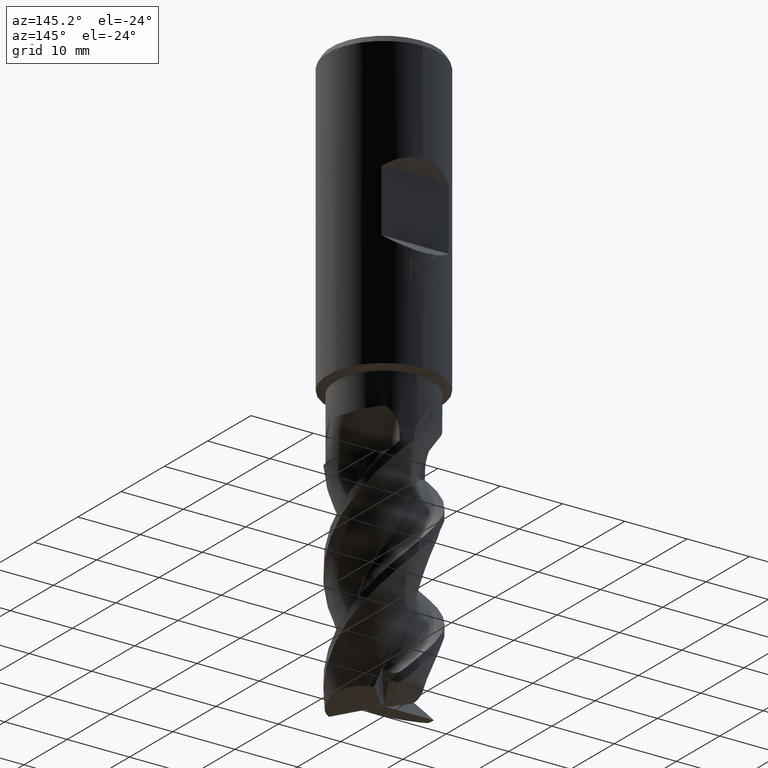
[diagram: clean part render]
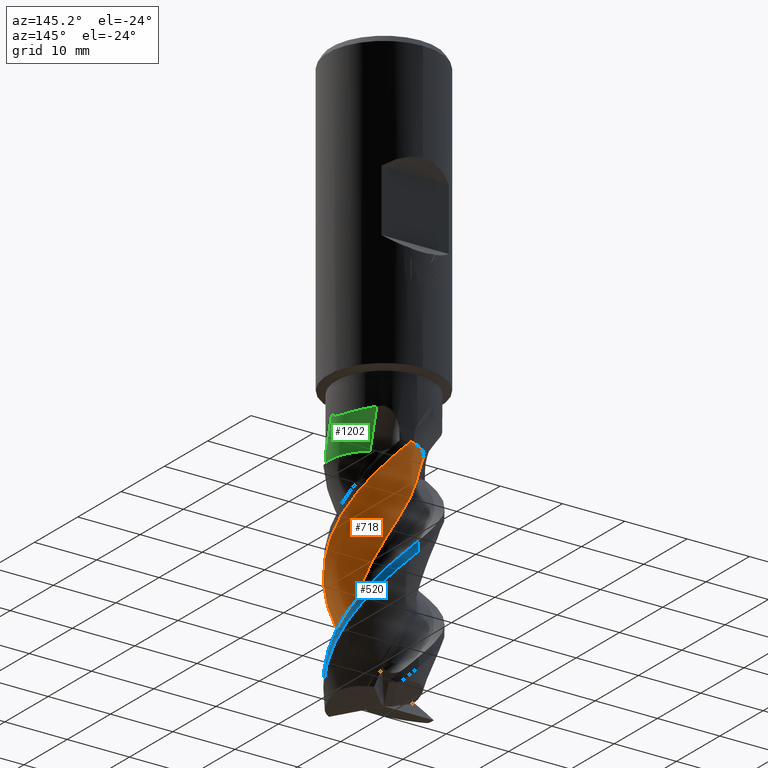
[diagram: same view with three faces highlighted in distinct colors, each labeled with its STEP entity id]
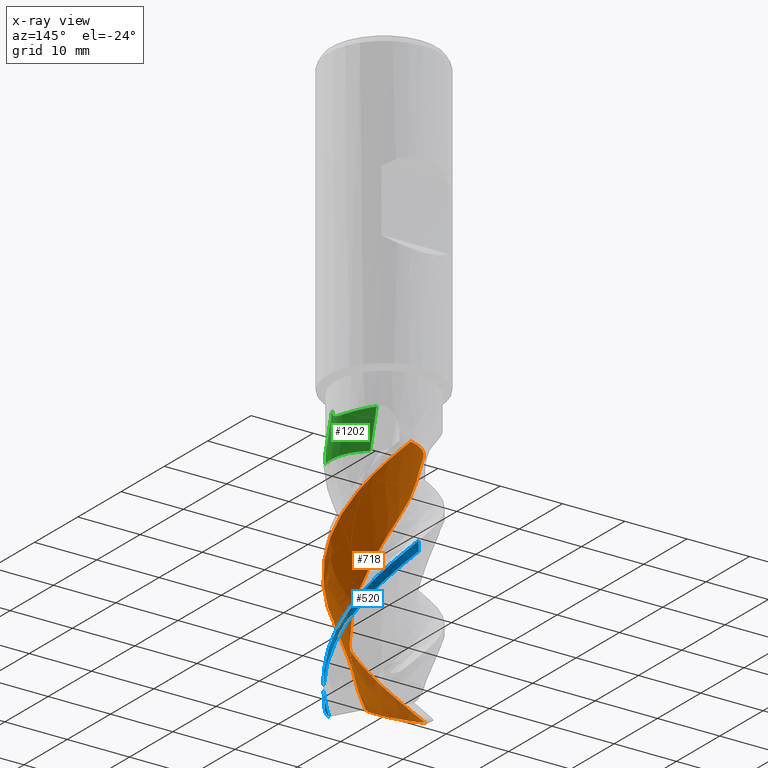
[diagram: x-ray of the same camera — body ghosted, the three highlighted faces saturated]
A machine part, auxiliary view with three faces highlighted in distinct colors.
The next image is the same camera in x-ray (body ghosted, the three faces saturated) — at least one of them is partly hidden behind the body in this view.
Their STEP definitions:

[orange] entity #718 — the highlighted face is a freeform B-spline surface patch.
#518=EDGE_CURVE('',#1126,#1322,#1453,.T.);
#596=EDGE_CURVE('',#648,#1126,#1540,.T.);
#648=VERTEX_POINT('',#1596);
#716=VERTEX_POINT('',#1673);
#718=ADVANCED_FACE('',(#1675),#1676,.T.);
#724=EDGE_CURVE('',#1322,#716,#1682,.T.);
#748=EDGE_CURVE('',#1280,#648,#1708,.T.);
#928=VERTEX_POINT('',#1901);
#1126=VERTEX_POINT('',#2114);
#1280=VERTEX_POINT('',#2280);
#1322=VERTEX_POINT('',#2329);
#1360=EDGE_CURVE('',#716,#928,#2372,.T.);
#1394=EDGE_CURVE('',#928,#1280,#2407,.T.);
#1453=B_SPLINE_CURVE_WITH_KNOTS('',3,(#2482,#2483,#2484,#2485,#2486,#2487,#2488,#2489,#2490,#2491),.UNSPECIFIED.,.F.,.F.,(4,2,2,2,4),(0.0,2.37430906525761,4.58271116722542,6.91978550680983,9.25201601344273),.UNSPECIFIED.);
#1540=B_SPLINE_CURVE_WITH_KNOTS('',3,(#2966,#2967,#2968,#2969,#2970,#2971,#2972,#2973,#2974,#2975,#2976,#2977,#2978,#2979,#2980,#2981,#2982,#2983,#2984,#2985,#2986,#2987,#2988,#2989,#2990,#2991,#2992,#2993,#2994,#2995,#2996,#2997,#2998,#2999,#3000,#3001,#3002,#3003,#3004,#3005,#3006,#3007,#3008,#3009,#3010,#3011,#3012,#3013,#3014,#3015,#3016,#3017,#3018,#3019,#3020,#3021),.UNSPECIFIED.,.F.,.F.,(4,2,2,2,2,2,2,2,2,2,2,2,2,2,2,2,2,2,2,2,2,2,2,2,2,2,2,4),(-28.4668429796781,-27.6712994719796,-26.8872778824875,-25.3350020965438,-24.9797718849759,-23.8201768144361,-22.4186734782329,-22.2692294963821,-21.5970282886077,-20.8523705344005,-19.3715810572476,-19.311292631882,-18.5876918884996,-16.6881741333263,-15.9772524079142,-15.1858151962003,-13.621192413923,-12.7987345154864,-12.104412388002,-10.277907394323,-9.33354088388494,-8.41467224339763,-6.59874730288563,-6.50013797391828,-2.43183300944061,-2.29245456062611,-1.17778017655191,-0.0),.UNSPECIFIED.);
#1596=CARTESIAN_POINT('',(-3.90817972178988,2.27155307286121,-58.0));
#1673=CARTESIAN_POINT('',(3.71241503235173E-014,-7.99996845163201,-81.9580712053547));
#1675=FACE_OUTER_BOUND('',#4681,.T.);
#1676=B_SPLINE_SURFACE_WITH_KNOTS('',3,3,((#4682,#4683,#4684,#4685,#4686,#4687,#4688,#4689,#4690,#4691,#4692,#4693,#4694,#4695,#4696,#4697,#4698,#4699,#4700,#4701,#4702,#4703,#4704,#4705,#4706,#4707,#4708,#4709,#4710,#4711,#4712,#4713,#4714,#4715,#4716,#4717,#4718,#4719,#4720,#4721,#4722,#4723,#4724,#4725,#4726,#4727,#4728,#4729,#4730,#4731,#4732,#4733,#4734,#4735,#4736,#4737,#4738,#4739,#4740,#4741,#4742,#4743,#4744,#4745,#4746,#4747,#4748,#4749,#4750,#4751,#4752,#4753,#4754),(#4755,#4756,#4757,#4758,#4759,#4760,#4761,#4762,#4763,#4764,#4765,#4766,#4767,#4768,#4769,#4770,#4771,#4772,#4773,#4774,#4775,#4776,#4777,#4778,#4779,#4780,#4781,#4782,#4783,#4784,#4785,#4786,#4787,#4788,#4789,#4790,#4791,#4792,#4793,#4794,#4795,#4796,#4797,#4798,#4799,#4800,#4801,#4802,#4803,#4804,#4805,#4806,#4807,#4808,#4809,#4810,#4811,#4812,#4813,#4814,#4815,#4816,#4817,#4818,#4819,#4820,#4821,#4822,#4823,#4824,#4825,#4826,#4827),(#4828,#4829,#4830,#4831,#4832,#4833,#4834,#4835,#4836,#4837,#4838,#4839,#4840,#4841,#4842,#4843,#4844,#4845,#4846,#4847,#4848,#4849,#4850,#4851,#4852,#4853,#4854,#4855,#4856,#4857,#4858,#4859,#4860,#4861,#4862,#4863,#4864,#4865,#4866,#4867,#4868,#4869,#4870,#4871,#4872,#4873,#4874,#4875,#4876,#4877,#4878,#4879,#4880,#4881,#4882,#4883,#4884,#4885,#4886,#4887,#4888,#4889,#4890,#4891,#4892,#4893,#4894,#4895,#4896,#4897,#4898,#4899,#4900),(#4901,#4902,#4903,#4904,#4905,#4906,#4907,#4908,#4909,#4910,#4911,#4912,#4913,#4914,#4915,#4916,#4917,#4918,#4919,#4920,#4921,#4922,#4923,#4924,#4925,#4926,#4927,#4928,#4929,#4930,#4931,#4932,#4933,#4934,#4935,#4936,#4937,#4938,#4939,#4940,#4941,#4942,#4943,#4944,#4945,#4946,#4947,#4948,#4949,#4950,#4951,#4952,#4953,#4954,#4955,#4956,#4957,#4958,#4959,#4960,#4961,#4962,#4963,#4964,#4965,#4966,#4967,#4968,#4969,#4970,#4971,#4972,#4973),(#4974,#4975,#4976,#4977,#4978,#4979,#4980,#4981,#4982,#4983,#4984,#4985,#4986,#4987,#4988,#4989,#4990,#4991,#4992,#4993,#4994,#4995,#4996,#4997,#4998,#4999,#5000,#5001,#5002,#5003,#5004,#5005,#5006,#5007,#5008,#5009,#5010,#5011,#5012,#5013,#5014,#5015,#5016,#5017,#5018,#5019,#5020,#5021,#5022,#5023,#5024,#5025,#5026,#5027,#5028,#5029,#5030,#5031,#5032,#5033,#5034,#5035,#5036,#5037,#5038,#5039,#5040,#5041,#5042,#5043,#5044,#5045,#5046),(#5047,#5048,#5049,#5050,#5051,#5052,#5053,#5054,#5055,#5056,#5057,#5058,#5059,#5060,#5061,#5062,#5063,#5064,#5065,#5066,#5067,#5068,#5069,#5070,#5071,#5072,#5073,#5074,#5075,#5076,#5077,#5078,#5079,#5080,#5081,#5082,#5083,#5084,#5085,#5086,#5087,#5088,#5089,#5090,#5091,#5092,#5093,#5094,#5095,#5096,#5097,#5098,#5099,#5100,#5101,#5102,#5103,#5104,#5105,#5106,#5107,#5108,#5109,#5110,#5111,#5112,#5113,#5114,#5115,#5116,#5117,#5118,#5119),(#5120,#5121,#5122,#5123,#5124,#5125,#5126,#5127,#5128,#5129,#5130,#5131,#5132,#5133,#5134,#5135,#5136,#5137,#5138,#5139,#5140,#5141,#5142,#5143,#5144,#5145,#5146,#5147,#5148,#5149,#5150,#5151,#5152,#5153,#5154,#5155,#5156,#5157,#5158,#5159,#5160,#5161,#5162,#5163,#5164,#5165,#5166,#5167,#5168,#5169,#5170,#5171,#5172,#5173,#5174,#5175,#5176,#5177,#5178,#5179,#5180,#5181,#5182,#5183,#5184,#5185,#5186,#5187,#5188,#5189,#5190,#5191,#5192)),.UNSPECIFIED.,.F.,.F.,.F.,(4,1,1,1,4),(4,1,1,2,1,2,1,1,2,1,1,2,1,1,2,1,1,1,2,1,1,2,1,1,2,1,1,1,2,1,1,2,1,1,2,1,1,1,2,1,1,2,1,1,2,1,1,1,2,1,1,2,1,1,4),(-1.37901021718593,-1.03425766288945,-0.689505108592964,-0.344752554296482,0.0),(0.0,1.05208028823285,1.57812043234927,2.10416057646569,3.15624086469854,4.20832115293138,6.31248172939707,7.36456201762992,8.41664230586276,9.46872259409561,11.0468430264449,12.6249634587941,14.2030838911434,15.7812043234927,16.8332846117255,17.8853648999584,18.9374451881912,19.9895254764241,21.0416057646569,22.0936860528897,23.671806485239,25.2499269175883,26.8280473499375,28.4061677822868,29.4582480705197,30.5103283587525,31.5624086469854,32.6144889352182,33.666569223451,34.7186495116839,36.2967699440332,37.8748903763824,39.4530108087317,41.031131241081,42.0832115293138,43.1352918175466,44.1873721057795,45.2394523940123,46.2915326822452,47.343612970478,48.9217334028273,50.4998538351766,52.0779742675258,53.6560946998751,54.7081749881079,55.7602552763408,56.8123355645736,57.8644158528065,58.9164961410393,59.9685764292722,61.5466968616214,63.1248172939707,64.70293772632,66.2810581586692,67.3331384469021),.UNSPECIFIED.);
#1682=B_SPLINE_CURVE_WITH_KNOTS('',3,(#5217,#5218,#5219,#5220,#5221,#5222,#5223,#5224,#5225,#5226,#5227,#5228,#5229,#5230,#5231,#5232,#5233,#5234,#5235,#5236,#5237,#5238,#5239,#5240,#5241,#5242,#5243,#5244,#5245,#5246,#5247,#5248,#5249,#5250,#5251,#5252,#5253,#5254,#5255,#5256,#5257,#5258,#5259,#5260,#5261,#5262,#5263,#5264,#5265,#5266,#5267,#5268,#5269,#5270,#5271,#5272),.UNSPECIFIED.,.F.,.F.,(4,2,2,2,2,2,2,2,2,2,2,2,2,2,2,2,2,2,2,2,2,2,2,2,2,2,2,4),(0.0,0.732669055719946,2.28817554699491,5.11171561271791,6.67522052705996,8.3601578091708,10.1335658830977,10.9957548452905,11.848013571475,13.6137395961151,14.4832272060883,16.081257737639,16.9448364702455,17.3450872287202,18.9218150157688,19.7516521338327,20.560008984626,22.1023979328835,22.8774610967245,23.6656678778752,25.2035266868077,26.117184424314,26.848045797212,27.6142657448053,28.7602006574762,29.3399801698441,29.6260785283109,29.903547263316),.UNSPECIFIED.);
#1708=B_SPLINE_CURVE_WITH_KNOTS('',3,(#5330,#5331,#5332,#5333,#5334,#5335,#5336,#5337,#5338,#5339),.UNSPECIFIED.,.F.,.F.,(4,2,2,2,4),(0.0,2.58388033049867,5.16756904786084,7.07826249463139,8.98889284253177),.UNSPECIFIED.);
#1901=CARTESIAN_POINT('',(1.16221636464933,7.91502704554703,-58.0));
#2114=CARTESIAN_POINT('',(-0.228141212503203,-4.51477288349573,-91.8869266797114));
#2280=CARTESIAN_POINT('',(-3.76787365884858,3.04118280575959,-58.0));
#2329=CARTESIAN_POINT('',(-7.81773805166928,-1.69792894787821,-92.8021747556161));
#2372=B_SPLINE_CURVE_WITH_KNOTS('',3,(#10279,#10280,#10281,#10282,#10283,#10284,#10285,#10286,#10287,#10288,#10289,#10290,#10291,#10292,#10293,#10294,#10295,#10296,#10297,#10298,#10299,#10300,#10301,#10302,#10303,#10304,#10305,#10306,#10307,#10308,#10309,#10310,#10311,#10312,#10313,#10314,#10315,#10316,#10317,#10318,#10319,#10320,#10321,#10322,#10323,#10324,#10325,#10326,#10327,#10328,#10329,#10330,#10331,#10332,#10333,#10334),.UNSPECIFIED.,.F.,.F.,(4,2,2,2,2,2,2,2,2,2,2,2,2,2,2,2,2,2,2,2,2,2,2,2,2,2,2,4),(0.0,0.732669055719946,2.28817554699491,5.11171561271791,6.67522052705996,8.3601578091708,10.1335658830977,10.9957548452905,11.848013571475,13.6137395961151,14.4832272060883,16.081257737639,16.9448364702455,17.3450872287202,18.9218150157688,19.7516521338327,20.560008984626,22.1023979328835,22.8774610967245,23.6656678778752,25.2035266868077,26.117184424314,26.848045797212,27.6142657448053,28.7602006574762,29.3399801698441,29.6260785283109,29.903547263316),.UNSPECIFIED.);
#2407=B_SPLINE_CURVE_WITH_KNOTS('',3,(#10407,#10408,#10409,#10410,#10411,#10412,#10413,#10414,#10415,#10416),.UNSPECIFIED.,.F.,.F.,(4,2,2,2,4),(0.0,2.58388033049867,5.16756904786084,7.07826249463139,8.98889284253177),.UNSPECIFIED.);
#2482=CARTESIAN_POINT('',(-0.164807803172486,-4.48892189368576,-91.8953261754761));
#2483=CARTESIAN_POINT('',(-0.890431781690487,-4.78943370008212,-91.7976839706274));
#2484=CARTESIAN_POINT('',(-1.66359583249642,-4.96033401382268,-91.7421550926007));
#2485=CARTESIAN_POINT('',(-3.18828779542198,-4.9872036036146,-91.7334246336476));
#2486=CARTESIAN_POINT('',(-3.91244869821299,-4.86360169611754,-91.7735853280508));
#2487=CARTESIAN_POINT('',(-5.3184749052444,-4.33498457762825,-91.9453434416138));
#2488=CARTESIAN_POINT('',(-5.9695205516916,-3.92385766305435,-92.0789266734788));
#2489=CARTESIAN_POINT('',(-7.07910133383891,-2.88814178759526,-92.4154511611166));
#2490=CARTESIAN_POINT('',(-7.59356820476778,-2.21217783534017,-92.6350851633138));
#2491=CARTESIAN_POINT('',(-7.97552161580536,-1.37524889636174,-92.9070198599352));
#2966=CARTESIAN_POINT('',(-3.90819313045627,2.27152999087688,-57.9999529717016));
#2967=CARTESIAN_POINT('',(-3.79315751578874,2.46955623806892,-58.4034204624959));
#2968=CARTESIAN_POINT('',(-3.66914644937536,2.65136486740278,-58.7726139208445));
#2969=CARTESIAN_POINT('',(-3.38960954869651,3.00130198719128,-59.5492913711479));
#2970=CARTESIAN_POINT('',(-3.24011480194033,3.16155030716519,-59.9386376518804));
#2971=CARTESIAN_POINT('',(-2.76875664429876,3.59956570797134,-61.0964199568316));
#2972=CARTESIAN_POINT('',(-2.40973861306117,3.84946901151917,-61.8898483513522));
#2973=CARTESIAN_POINT('',(-1.92293438469999,4.09274863810651,-62.828941412362));
#2974=CARTESIAN_POINT('',(-1.83461494011715,4.13345532035391,-62.9930068294295));
#2975=CARTESIAN_POINT('',(-1.43634714611996,4.30065934354081,-63.735730467698));
#2976=CARTESIAN_POINT('',(-1.12476116302424,4.39115352932487,-64.3151099090927));
#2977=CARTESIAN_POINT('',(-0.435095442754385,4.51602155605177,-65.5815366961609));
#2978=CARTESIAN_POINT('',(-0.0415839035732913,4.53743818498871,-66.2909490589945));
#2979=CARTESIAN_POINT('',(0.400856260188374,4.50331011112592,-67.0512709854903));
#2980=CARTESIAN_POINT('',(0.440516126251905,4.49970529706755,-67.1188321227293));
#2981=CARTESIAN_POINT('',(0.662035077046195,4.4766239741428,-67.4985761608433));
#2982=CARTESIAN_POINT('',(0.838933632580422,4.44684005354959,-67.8114834714408));
#2983=CARTESIAN_POINT('',(1.20202777717491,4.36349103205715,-68.4725369292798));
#2984=CARTESIAN_POINT('',(1.38826308072582,4.30743961035394,-68.8228076222131));
#2985=CARTESIAN_POINT('',(1.92863311419843,4.10648811464159,-69.8648708964093));
#2986=CARTESIAN_POINT('',(2.27907174269973,3.92393492026724,-70.5741049567514));
#2987=CARTESIAN_POINT('',(2.62223049115493,3.68288283435066,-71.2888191940079));
#2988=CARTESIAN_POINT('',(2.63475892321705,3.67398505074372,-71.3149070901164));
#2989=CARTESIAN_POINT('',(2.80212530001912,3.55379441704999,-71.6655793825919));
#2990=CARTESIAN_POINT('',(2.94660151553935,3.43489541336661,-71.9917371094833));
#2991=CARTESIAN_POINT('',(3.43528612428686,2.97976290262574,-73.176864344014));
#2992=CARTESIAN_POINT('',(3.73393939437256,2.59368394440039,-74.0688072510032));
#2993=CARTESIAN_POINT('',(4.05585019489967,2.00477710404023,-75.242934227987));
#2994=CARTESIAN_POINT('',(4.13079996180739,1.84669689096218,-75.5369438409312));
#2995=CARTESIAN_POINT('',(4.27291551006113,1.49326964616147,-76.1956679105077));
#2996=CARTESIAN_POINT('',(4.3338566507599,1.30504005486735,-76.545615506391));
#2997=CARTESIAN_POINT('',(4.47664845846067,0.742170383280615,-77.5870277103296));
#2998=CARTESIAN_POINT('',(4.52326473149477,0.355096193016438,-78.2961989947082));
#2999=CARTESIAN_POINT('',(4.51866231419897,-0.242359017331434,-79.3468795612129));
#3000=CARTESIAN_POINT('',(4.50430661132099,-0.438414056572868,-79.6776847662718));
#3001=CARTESIAN_POINT('',(4.45286700354202,-0.804642776312843,-80.3168300821526));
#3002=CARTESIAN_POINT('',(4.42001269521806,-0.968526990437365,-80.6113394530964));
#3003=CARTESIAN_POINT('',(4.27010916049468,-1.54880348324693,-81.6816308884445));
#3004=CARTESIAN_POINT('',(4.09997917427474,-1.95342574879886,-82.4818399839966));
#3005=CARTESIAN_POINT('',(3.75573533383923,-2.526208032934,-83.6531658836038));
#3006=CARTESIAN_POINT('',(3.62830018052659,-2.70767997351626,-84.0237705366331));
#3007=CARTESIAN_POINT('',(3.33928903186456,-3.05729958658092,-84.8152145372925));
#3008=CARTESIAN_POINT('',(3.18586499774526,-3.21623837864117,-85.2094955063132));
#3009=CARTESIAN_POINT('',(2.70300932385998,-3.64932556889895,-86.3789814496784));
#3010=CARTESIAN_POINT('',(2.33484724558373,-3.89612886889362,-87.1798953710025));
#3011=CARTESIAN_POINT('',(1.90555294937128,-4.09981344714585,-87.9921679421971));
#3012=CARTESIAN_POINT('',(1.88532531637319,-4.10919820835611,-88.0301402174905));
#3013=CARTESIAN_POINT('',(1.12438935191104,-4.45702540148487,-89.4514990063801));
#3014=CARTESIAN_POINT('',(0.348992854903363,-4.56545533555701,-90.8985984433762));
#3015=CARTESIAN_POINT('',(-0.411184295740903,-4.50224355900288,-92.2025242520616));
#3016=CARTESIAN_POINT('',(-0.434488313111661,-4.50011440854567,-92.2422956149002));
#3017=CARTESIAN_POINT('',(-0.645331488895867,-4.47924344162843,-92.6032049835975));
#3018=CARTESIAN_POINT('',(-0.828248946933118,-4.44902603746472,-92.9263291048137));
#3019=CARTESIAN_POINT('',(-1.19443042738568,-4.36541808273099,-93.5924027585147));
#3020=CARTESIAN_POINT('',(-1.3781413441711,-4.31056357998282,-93.9372408283281));
#3021=CARTESIAN_POINT('',(-1.55663351426407,-4.2448012723105,-94.2806726784696));
#4681=EDGE_LOOP('',(#10732,#10733,#10734,#10735,#10736,#10737));
#4682=CARTESIAN_POINT('',(2.3060802388656,7.99402238740563,-109.0));
#4683=CARTESIAN_POINT('',(2.25731157464283,8.00766404818819,-108.651042759209));
#4684=CARTESIAN_POINT('',(2.04219996221011,8.07216497479465,-108.127662262609));
#4685=CARTESIAN_POINT('',(1.44808755403287,8.19661323175689,-107.429821293825));
#4686=CARTESIAN_POINT('',(1.04516490962436,8.25432362032309,-107.080863110386));
#4687=CARTESIAN_POINT('',(0.36354258203449,8.32097126109252,-106.557362705397));
#4688=CARTESIAN_POINT('',(-0.484672211968626,8.33047078920658,-105.859341245573));
#4689=CARTESIAN_POINT('',(-1.21671025615042,8.23542804862728,-105.161390836272));
#4690=CARTESIAN_POINT('',(-2.24742218480573,8.03926352768804,-104.114575390176));
#4691=CARTESIAN_POINT('',(-3.24083046838269,7.71743649834359,-103.067751802653));
#4692=CARTESIAN_POINT('',(-4.49068734031985,7.02924902155404,-101.671967103328));
#4693=CARTESIAN_POINT('',(-5.0857762756534,6.59215499663479,-100.974050916022));
#4694=CARTESIAN_POINT('',(-5.66053922940679,6.10568196095665,-100.276110283525));
#4695=CARTESIAN_POINT('',(-6.32220406974835,5.46241027149522,-99.4036770183619));
#4696=CARTESIAN_POINT('',(-7.1745333002134,4.30929017957769,-98.0078106808517));
#4697=CARTESIAN_POINT('',(-7.64344257135939,3.32692530045031,-96.9609522632323));
#4698=CARTESIAN_POINT('',(-8.01926311890461,2.27661009491647,-95.9140887479022));
#4699=CARTESIAN_POINT('',(-8.28038936887536,1.21765907140854,-94.8672064705926));
#4700=CARTESIAN_POINT('',(-8.35202336109279,-0.213141127134513,-93.4713823372517));
#4701=CARTESIAN_POINT('',(-8.24970983970643,-1.12265824229889,-92.5989945314596));
#4702=CARTESIAN_POINT('',(-8.11659659999758,-1.85462903317301,-91.9010754052081));
#4703=CARTESIAN_POINT('',(-7.93716784436209,-2.56406453979383,-91.2031489855393));
#4704=CARTESIAN_POINT('',(-7.54073283439913,-3.5642105079066,-90.1562651489506));
#4705=CARTESIAN_POINT('',(-7.01941180784815,-4.50556044125067,-89.1093961502756));
#4706=CARTESIAN_POINT('',(-6.58488074477173,-5.09486385740506,-88.4114870194221));
#4707=CARTESIAN_POINT('',(-6.10345508902533,-5.66274620444091,-87.7135702660375));
#4708=CARTESIAN_POINT('',(-5.46543484531181,-6.31915665120656,-86.8411643071416));
#4709=CARTESIAN_POINT('',(-4.31489860360285,-7.17129514809577,-85.4453242043968));
#4710=CARTESIAN_POINT('',(-3.33105182460524,-7.64167609437863,-84.3984644268323));
#4711=CARTESIAN_POINT('',(-2.28007264170665,-8.01831236858324,-83.3515887396078));
#4712=CARTESIAN_POINT('',(-1.22143681605695,-8.27976950827045,-82.3046971535594));
#4713=CARTESIAN_POINT('',(0.20820349551885,-8.35212381734302,-80.908869023202));
#4714=CARTESIAN_POINT('',(1.11770303480591,-8.25039133987058,-80.0364825824723));
#4715=CARTESIAN_POINT('',(1.85007696086369,-8.11763816686597,-79.3385655120775));
#4716=CARTESIAN_POINT('',(2.55997969469184,-7.93850291758653,-78.6406407088683));
#4717=CARTESIAN_POINT('',(3.56078967476739,-7.54235892317725,-77.593758113796));
#4718=CARTESIAN_POINT('',(4.50261332008284,-7.02130398901044,-76.5468893903909));
#4719=CARTESIAN_POINT('',(5.09205862112181,-6.58704409449121,-75.8489799906006));
#4720=CARTESIAN_POINT('',(5.66000293667565,-6.10599599713467,-75.1510628625699));
#4721=CARTESIAN_POINT('',(6.31654135858338,-5.46843726595221,-74.2786565784287));
#4722=CARTESIAN_POINT('',(7.16911475997245,-4.3185088324805,-72.8828163788516));
#4723=CARTESIAN_POINT('',(7.64000258734788,-3.33489750722289,-71.8359566866951));
#4724=CARTESIAN_POINT('',(8.01719384641748,-2.28401155066727,-70.7890810398009));
#4725=CARTESIAN_POINT('',(8.27918412893221,-1.22542609725916,-69.74218944878));
#4726=CARTESIAN_POINT('',(8.35222204393303,0.204219022408521,-68.3463612764392));
#4727=CARTESIAN_POINT('',(8.25092406106006,1.11376142927899,-67.4739748307889));
#4728=CARTESIAN_POINT('',(8.11852367151964,1.84618713698325,-66.7760577707352));
#4729=CARTESIAN_POINT('',(7.93973185194925,2.55616452281762,-66.0781329756518));
#4730=CARTESIAN_POINT('',(7.54407638863783,3.557148772102,-65.0312503915912));
#4731=CARTESIAN_POINT('',(7.02348625617033,4.49920746445898,-63.9843816852115));
#4732=CARTESIAN_POINT('',(6.58952133530043,5.08885201757606,-63.2864723060807));
#4733=CARTESIAN_POINT('',(6.10875984182039,5.65701894045009,-62.5885552066561));
#4734=CARTESIAN_POINT('',(5.47152531606279,6.31386659616005,-61.7161489610627));
#4735=CARTESIAN_POINT('',(4.32197563805251,7.1670300841662,-60.3203087495922));
#4736=CARTESIAN_POINT('',(3.33853255455701,7.6384166587273,-59.2734488795264));
#4737=CARTESIAN_POINT('',(2.2877677179617,8.01612573698375,-58.2265729272588));
#4738=CARTESIAN_POINT('',(1.22933125485873,8.27859897017585,-57.1796811372211));
#4739=CARTESIAN_POINT('',(-0.200143517105302,8.35231610856468,-55.7838534340551));
#4740=CARTESIAN_POINT('',(-1.10969064650599,8.25147262315969,-54.911467828959));
#4741=CARTESIAN_POINT('',(-1.84217957314589,8.11943343212398,-54.2135516377554));
#4742=CARTESIAN_POINT('',(-2.55231290348238,7.94097655195973,-53.5156274063735));
#4743=CARTESIAN_POINT('',(-3.55357998658323,7.5457613277412,-52.4687443967097));
#4744=CARTESIAN_POINT('',(-4.4957836637074,7.02566816130538,-51.4218737590403));
#4745=CARTESIAN_POINT('',(-5.08535520481706,6.5922068925181,-50.7239620115071));
#4746=CARTESIAN_POINT('',(-5.65335996398015,6.11212249103564,-50.0260420096526));
#4747=CARTESIAN_POINT('',(-6.31017625949219,5.47570726962633,-49.1536336857679));
#4748=CARTESIAN_POINT('',(-7.16467212829123,4.32614489348423,-47.7577970722911));
#4749=CARTESIAN_POINT('',(-7.63808071207035,3.33969289988787,-46.7109460235936));
#4750=CARTESIAN_POINT('',(-8.01752295448308,2.28372667490972,-45.6640812243685));
#4751=CARTESIAN_POINT('',(-8.27935367132569,1.22323863241457,-44.6171927299836));
#4752=CARTESIAN_POINT('',(-8.35160134871196,-0.19371951930238,-43.2213644948005));
#4753=CARTESIAN_POINT('',(-8.25419972435698,-1.08699171686982,-42.3489859073541));
#4754=CARTESIAN_POINT('',(-8.190793021947,-1.44567709106436,-42.0000330088057));
#4755=CARTESIAN_POINT('',(1.54710732607867,7.95245334154674,-109.0));
#4756=CARTESIAN_POINT('',(1.49872884649446,7.95897112642963,-108.651009345214));
#4757=CARTESIAN_POINT('',(1.28478943762125,8.00040449547096,-108.127816673453));
#4758=CARTESIAN_POINT('',(0.698250194627938,8.06895575953263,-107.430261284736));
#4759=CARTESIAN_POINT('',(0.302621590616045,8.09056524000994,-107.081319001911));
#4760=CARTESIAN_POINT('',(-0.364156303305005,8.09758905572271,-106.557620601551));
#4761=CARTESIAN_POINT('',(-1.18758767308869,8.03466231851409,-105.859246641106));
#4762=CARTESIAN_POINT('',(-1.8891139600918,7.87952028486688,-105.161172181885));
#4763=CARTESIAN_POINT('',(-2.87126046603825,7.6002772699011,-104.114551281483));
#4764=CARTESIAN_POINT('',(-3.80632594545183,7.20238475490013,-103.067903870538));
#4765=CARTESIAN_POINT('',(-4.95856064694663,6.4274646661205,-101.672292996074));
#4766=CARTESIAN_POINT('',(-5.49790046475841,5.95254764715217,-100.974382684883));
#4767=CARTESIAN_POINT('',(-6.01339842375484,5.43156500439613,-100.276363677148));
#4768=CARTESIAN_POINT('',(-6.59955150926105,4.75101695242617,-99.4038058838089));
#4769=CARTESIAN_POINT('',(-7.32632891408926,3.55966206931907,-98.0078291897292));
#4770=CARTESIAN_POINT('',(-7.69625000668369,2.56694702894841,-96.9610282547727));
#4771=CARTESIAN_POINT('',(-7.97034088533733,1.51637248050528,-95.9142053516751));
#4772=CARTESIAN_POINT('',(-8.13225888283925,0.467284891179808,-94.8673001563886));
#4773=CARTESIAN_POINT('',(-8.07827926318302,-0.925894449851735,-93.4715106769438));
#4774=CARTESIAN_POINT('',(-7.90081381117937,-1.79881671257545,-92.5991523634946));
#4775=CARTESIAN_POINT('',(-7.70886078240541,-2.4970226573232,-91.9012264220051));
#4776=CARTESIAN_POINT('',(-7.47384645115819,-3.16934730871445,-91.2032682845764));
#4777=CARTESIAN_POINT('',(-7.00329628249535,-4.10470687880196,-90.1563564871993));
#4778=CARTESIAN_POINT('',(-6.41675668168207,-4.97229711314417,-89.1095100714887));
#4779=CARTESIAN_POINT('',(-5.94478215908418,-5.50619583827767,-88.4116280761649));
#4780=CARTESIAN_POINT('',(-5.42924275682237,-6.01538948662503,-87.713712439563));
#4781=CARTESIAN_POINT('',(-4.75420801032699,-6.59683925718393,-86.8412737455513));
#4782=CARTESIAN_POINT('',(-3.56537421203943,-7.32364096244583,-85.4454134736228));
#4783=CARTESIAN_POINT('',(-2.5710993362924,-7.69488626589944,-84.3986078542817));
#4784=CARTESIAN_POINT('',(-1.51981131938484,-7.96972382129157,-83.3517320381977));
#4785=CARTESIAN_POINT('',(-0.470999923210667,-8.13198989774582,-82.3047860439102));
#4786=CARTESIAN_POINT('',(0.921114121453092,-8.07879738330473,-80.9089785899512));
#4787=CARTESIAN_POINT('',(1.79406816961878,-7.90189470205842,-80.0366260246887));
#4788=CARTESIAN_POINT('',(2.49269668608521,-7.71025761338114,-79.3387090402003));
#4789=CARTESIAN_POINT('',(3.16550089617856,-7.4754897693249,-78.640757932057));
#4790=CARTESIAN_POINT('',(4.10153193770363,-7.00516765457207,-77.5938516006379));
#4791=CARTESIAN_POINT('',(4.96960633998554,-6.41884692504976,-76.5470065001461));
#4792=CARTESIAN_POINT('',(5.50366588763266,-5.94712292145515,-75.8491233660224));
#4793=CARTESIAN_POINT('',(6.01295085165691,-5.43194351595718,-75.1512061234498));
#4794=CARTESIAN_POINT('',(6.59456288534171,-4.75734435986124,-74.278766015128));
#4795=CARTESIAN_POINT('',(7.32183679262112,-3.56906172117826,-72.8829053276437));
#4796=CARTESIAN_POINT('',(7.69359374726465,-2.5749715061325,-71.8361000335228));
#4797=CARTESIAN_POINT('',(7.96897818723535,-1.5237262199105,-70.7892243866286));
#4798=CARTESIAN_POINT('',(8.13176604729078,-0.474917646209188,-69.7422783377141));
#4799=CARTESIAN_POINT('',(8.07923610266695,0.917260130591909,-68.3464707233934));
#4800=CARTESIAN_POINT('',(7.90275090753793,1.79029311238108,-67.4741181232858));
#4801=CARTESIAN_POINT('',(7.71145128769669,2.4890020981571,-66.7762012350448));
#4802=CARTESIAN_POINT('',(7.47700988198398,3.161908185467,-66.0782501384846));
#4803=CARTESIAN_POINT('',(7.00714621391588,4.09815020210479,-65.0313439134564));
#4804=CARTESIAN_POINT('',(6.42125570135527,4.96649243229047,-63.9844988992361));
#4805=CARTESIAN_POINT('',(5.9498004513781,5.50077043609261,-63.2866158064415));
#4806=CARTESIAN_POINT('',(5.43487971028945,6.01029576598796,-62.588698649746));
#4807=CARTESIAN_POINT('',(4.76056825535356,6.59223547017556,-61.7162586168332));
#4808=CARTESIAN_POINT('',(3.57260202023284,7.32011446572451,-60.3203977682774));
#4809=CARTESIAN_POINT('',(2.57863200713313,7.69236990491198,-59.2735917781776));
#4810=CARTESIAN_POINT('',(1.52745964614289,7.96826711251426,-58.2267150527528));
#4811=CARTESIAN_POINT('',(0.478753893159748,8.1315356152652,-57.1797685584748));
#4812=CARTESIAN_POINT('',(-0.913317024443536,8.07967762782488,-55.7839632296022));
#4813=CARTESIAN_POINT('',(-1.78639360925654,7.90363251991116,-54.9116138977884));
#4814=CARTESIAN_POINT('',(-2.48519508528905,7.71267792718397,-54.2137001692339));
#4815=CARTESIAN_POINT('',(-3.15828170388636,7.47854869189168,-53.5157506673951));
#4816=CARTESIAN_POINT('',(-4.09483682659948,7.00908849970972,-52.4688412959192));
#4817=CARTESIAN_POINT('',(-4.96336188027068,6.42366656026752,-51.4219875950558));
#4818=CARTESIAN_POINT('',(-5.49760966713382,5.95270371185624,-50.7240953961962));
#4819=CARTESIAN_POINT('',(-6.00703124144449,5.43845044893332,-50.0261677200401));
#4820=CARTESIAN_POINT('',(-6.58900506094903,4.76493291004509,-49.1537227349527));
#4821=CARTESIAN_POINT('',(-7.3181779506384,3.57684198146064,-47.7578835499554));
#4822=CARTESIAN_POINT('',(-7.69216448515316,2.57978644436432,-46.7111118155113));
#4823=CARTESIAN_POINT('',(-7.96934225015576,1.52342377021161,-45.6642711559739));
#4824=CARTESIAN_POINT('',(-8.13183196866695,0.472779170082342,-44.6173174427619));
#4825=CARTESIAN_POINT('',(-8.07953062350894,-0.90701184825884,-43.2214590299273));
#4826=CARTESIAN_POINT('',(-7.90809965218288,-1.76455320152,-42.3490982567605));
#4827=CARTESIAN_POINT('',(-7.81574944229018,-2.10682016830968,-42.0001456445666));
#4828=CARTESIAN_POINT('',(0.0438166097925872,7.6051648581762,-109.0));
#4829=CARTESIAN_POINT('',(-0.0013021296480793,7.59757245200443,-108.650946983062));
#4830=CARTESIAN_POINT('',(-0.204868751481513,7.59328437783438,-108.128104857676));
#4831=CARTESIAN_POINT('',(-0.756808604398779,7.55269121356767,-107.43108246028));
#4832=CARTESIAN_POINT('',(-1.1252859986837,7.5046464724072,-107.08216985051));
#4833=CARTESIAN_POINT('',(-1.74162657261913,7.39760395881666,-106.55810192938));
#4834=CARTESIAN_POINT('',(-2.49028922168072,7.19846843779916,-105.859070077109));
#4835=CARTESIAN_POINT('',(-3.10988196563913,6.93376224063718,-105.160764091571));
#4836=CARTESIAN_POINT('',(-3.96599406933729,6.50528588507953,-104.114506297885));
#4837=CARTESIAN_POINT('',(-4.75791375556304,5.97558738219258,-103.068187682329));
#4838=CARTESIAN_POINT('',(-5.68474084347562,5.06120082040594,-101.672901218728));
#4839=CARTESIAN_POINT('',(-6.09943186729385,4.53005062722945,-100.975001882469));
#4840=CARTESIAN_POINT('',(-6.48440335950223,3.96068446793335,-100.276836594688));
#4841=CARTESIAN_POINT('',(-6.90657751891147,3.23187477611445,-99.4040463990473));
#4842=CARTESIAN_POINT('',(-7.36897456592359,2.00775805162727,-98.0078637178728));
#4843=CARTESIAN_POINT('',(-7.53734128923574,1.02879808686786,-96.9611701000561));
#4844=CARTESIAN_POINT('',(-7.60790768361821,0.0131119553242192,-95.9144229557053));
#4845=CARTESIAN_POINT('',(-7.57486653527999,-0.981721763169007,-94.8674750140067));
#4846=CARTESIAN_POINT('',(-7.28278462002316,-2.25594881363101,-93.4717502370891));
#4847=CARTESIAN_POINT('',(-6.96777064582973,-3.02953374752367,-92.5994468905561));
#4848=CARTESIAN_POINT('',(-6.66990441361013,-3.63973912228865,-91.9015083134394));
#4849=CARTESIAN_POINT('',(-6.33664905695906,-4.21850463038697,-91.2034909113063));
#4850=CARTESIAN_POINT('',(-5.74043574825237,-4.99851159025596,-90.1565269151499));
#4851=CARTESIAN_POINT('',(-5.04914714648407,-5.69590126103298,-89.1097227008463));
#4852=CARTESIAN_POINT('',(-4.52157852029823,-6.10597205179571,-88.4118913214709));
#4853=CARTESIAN_POINT('',(-3.95824666928479,-6.48592945917503,-87.71397779967));
#4854=CARTESIAN_POINT('',(-3.23528208969126,-6.90459345890135,-86.8414779700005));
#4855=CARTESIAN_POINT('',(-2.01348611548403,-7.36742299827121,-85.4455800839007));
#4856=CARTESIAN_POINT('',(-1.03286178624436,-7.5367919151139,-84.398875544218));
#4857=CARTESIAN_POINT('',(-0.0163872362916666,-7.60794963431702,-83.3519994779933));
#4858=CARTESIAN_POINT('',(0.978254256072811,-7.57527740118049,-82.3049519668674));
#4859=CARTESIAN_POINT('',(2.25162844195897,-7.28408318925336,-80.9091830870547));
#4860=CARTESIAN_POINT('',(3.02533746725509,-6.96957830975612,-80.0368937475294));
#4861=CARTESIAN_POINT('',(3.6359889703122,-6.67193297279748,-79.3389769030393));
#4862=CARTESIAN_POINT('',(4.21524230292767,-6.33882580531105,-78.6409767096409));
#4863=CARTESIAN_POINT('',(4.99591374459406,-5.74271204262557,-77.5940261252591));
#4864=CARTESIAN_POINT('',(5.69379206252548,-5.05154423789538,-76.5472250776436));
#4865=CARTESIAN_POINT('',(6.10405432940543,-4.52417827491281,-75.8493909462302));
#4866=CARTESIAN_POINT('',(6.48415567453227,-3.96116103949777,-75.1514735054547));
#4867=CARTESIAN_POINT('',(6.90304143496689,-3.2385683192509,-74.2789702405389));
#4868=CARTESIAN_POINT('',(7.36639803552167,-2.01719722981513,-72.8830712914122));
#4869=CARTESIAN_POINT('',(7.53627056680549,-1.03665433715724,-71.8363675751431));
#4870=CARTESIAN_POINT('',(7.60794125998813,-0.0201243258876014,-70.7894919142763));
#4871=CARTESIAN_POINT('',(7.57575169477804,0.974605442542109,-69.7424443077306));
#4872=CARTESIAN_POINT('',(7.28515741763244,2.24815388896654,-68.3466749709881));
#4873=CARTESIAN_POINT('',(6.9710234071798,3.02200805671416,-67.4743856256497));
#4874=CARTESIAN_POINT('',(6.6736749883933,3.6327920622858,-66.7764689198752));
#4875=CARTESIAN_POINT('',(6.34085078310094,4.2121958156625,-66.0784688986412));
#4876=CARTESIAN_POINT('',(5.74512253443035,4.99314114933494,-65.0315184841497));
#4877=CARTESIAN_POINT('',(5.0543043528449,5.69134079553824,-63.9847175961966));
#4878=CARTESIAN_POINT('',(4.5271480142454,6.10185083522841,-63.2868836386477));
#4879=CARTESIAN_POINT('',(3.96432743622727,6.48221829591408,-62.5889663530339));
#4880=CARTESIAN_POINT('',(3.24194296215848,6.90145593246035,-61.7164632947349));
#4881=CARTESIAN_POINT('',(2.02075837555462,7.36542592145978,-60.3205638520614));
#4882=CARTESIAN_POINT('',(1.04023969533255,7.53577959746619,-59.2738585227605));
#4883=CARTESIAN_POINT('',(0.023688029398826,7.60793632123789,-58.2269802615677));
#4884=CARTESIAN_POINT('',(-0.971030476955964,7.57620660927373,-57.1799317582199));
#4885=CARTESIAN_POINT('',(-2.24459646496784,7.28624767834198,-55.784168136897));
#4886=CARTESIAN_POINT('',(-3.0185670164035,6.97251142936077,-54.9118865405234));
#4887=CARTESIAN_POINT('',(-3.62949636430569,6.67546549996565,-54.2139773523576));
#4888=CARTESIAN_POINT('',(-4.20912191641368,6.34289936642554,-53.5159807443642));
#4889=CARTESIAN_POINT('',(-4.99042808131627,5.74749054765285,-52.4690221497321));
#4890=CARTESIAN_POINT('',(-5.6888763755055,5.05707100061136,-51.4222000698636));
#4891=CARTESIAN_POINT('',(-6.09943783704718,4.53036969658859,-50.7243442721236));
#4892=CARTESIAN_POINT('',(-6.47981500987628,3.96817698623945,-50.0264024049438));
#4893=CARTESIAN_POINT('',(-6.89920884179684,3.24651291776289,-49.1538888938382));
#4894=CARTESIAN_POINT('',(-7.36435678591239,2.0249930565125,-47.7580448192731));
#4895=CARTESIAN_POINT('',(-7.53583310651517,1.04133687666783,-46.7114213452338));
#4896=CARTESIAN_POINT('',(-7.60836920901803,0.0197745936261362,-45.6646255291295));
#4897=CARTESIAN_POINT('',(-7.5756273692478,-0.976609907279683,-44.6175502745412));
#4898=CARTESIAN_POINT('',(-7.28719469070801,-2.23872651022617,-43.2216355541419));
#4899=CARTESIAN_POINT('',(-6.980159395949,-2.99904905940723,-42.3493078513935));
#4900=CARTESIAN_POINT('',(-6.83564373857112,-3.2984094573275,-42.00035586178));
#4901=CARTESIAN_POINT('',(-1.9024734876097,6.35272671087998,-109.0));
#4902=CARTESIAN_POINT('',(-1.93583655898786,6.32686603916138,-108.650877820736));
#4903=CARTESIAN_POINT('',(-2.10157908130163,6.26328685466579,-108.128424467451));
#4904=CARTESIAN_POINT('',(-2.5493376595774,6.08614373588078,-107.43199318154));
#4905=CARTESIAN_POINT('',(-2.84416968528547,5.95352564309195,-107.083113483683));
#4906=CARTESIAN_POINT('',(-3.33147340153212,5.71101406084908,-106.558635739473));
#4907=CARTESIAN_POINT('',(-3.90552226547216,5.35748401411492,-105.85887426094));
#4908=CARTESIAN_POINT('',(-4.35389411623555,4.97963263164235,-105.160311502238));
#4909=CARTESIAN_POINT('',(-4.95641206760198,4.40436409717815,-104.114456405317));
#4910=CARTESIAN_POINT('',(-5.4794148060851,3.76115247045553,-103.06850244118));
#4911=CARTESIAN_POINT('',(-6.01730344724787,2.76414244203613,-101.67357577077));
#4912=CARTESIAN_POINT('',(-6.22750540355803,2.21679587197057,-100.975688599015));
#4913=CARTESIAN_POINT('',(-6.40366932692214,1.64529543385886,-100.277361084684));
#4914=CARTESIAN_POINT('',(-6.56986923288231,0.931483151325457,-99.4043131348053));
#4915=CARTESIAN_POINT('',(-6.64240259146521,-0.204852255607767,-98.007902018554));
#4916=CARTESIAN_POINT('',(-6.53318684915409,-1.06220930232565,-96.9613274015073));
#4917=CARTESIAN_POINT('',(-6.33410337671793,-1.92545750823989,-95.914664300286));
#4918=CARTESIAN_POINT('',(-6.05332293515573,-2.74485540864365,-94.8676689352337));
#4919=CARTESIAN_POINT('',(-5.48539239439785,-3.73043236102248,-93.4720159015505));
#4920=CARTESIAN_POINT('',(-5.02654810308889,-4.29403817033979,-92.5997735589039));
#4921=CARTESIAN_POINT('',(-4.623767035955,-4.72630813105892,-91.9018209200538));
#4922=CARTESIAN_POINT('',(-4.19924658524219,-5.12318019179181,-91.2037378245172));
#4923=CARTESIAN_POINT('',(-3.50438127925714,-5.62015083346698,-90.1567159504298));
#4924=CARTESIAN_POINT('',(-2.75149497913939,-6.02414472837192,-89.1099585177773));
#4925=CARTESIAN_POINT('',(-2.20821607897297,-6.23120938342009,-88.412183275179));
#4926=CARTESIAN_POINT('',(-1.64293024207701,-6.4044803963292,-87.7142720939876));
#4927=CARTESIAN_POINT('',(-0.934826607928613,-6.56902289223033,-86.8417044805786));
#4928=CARTESIAN_POINT('',(0.199677841149407,-6.64246343868722,-85.4457648497423));
#4929=CARTESIAN_POINT('',(1.05868359059799,-6.53374224250699,-84.3991724429497));
#4930=CARTESIAN_POINT('',(1.9227472334311,-6.33499283803131,-83.3522960630693));
#4931=CARTESIAN_POINT('',(2.74208203605833,-6.05456810782192,-82.3051359780168));
#4932=CARTESIAN_POINT('',(3.72715700746059,-5.48755964611993,-80.9094098925421));
#4933=CARTESIAN_POINT('',(4.2909900610954,-5.02910183186803,-80.037190646966));
#4934=CARTESIAN_POINT('',(4.72369116961735,-4.62639556599722,-79.3392739930654));
#4935=CARTESIAN_POINT('',(5.12101292770128,-4.20188031387798,-78.6412193421965));
#4936=CARTESIAN_POINT('',(5.6185730254328,-3.50693667374995,-77.5942196332771));
#4937=CARTESIAN_POINT('',(6.02301216333929,-2.75403043979311,-76.547467479311));
#4938=CARTESIAN_POINT('',(6.23028732337663,-2.21087107489082,-75.8496877134402));
#4939=CARTESIAN_POINT('',(6.40375353749899,-1.64580914592417,-75.15177003629));
#4940=CARTESIAN_POINT('',(6.5685695042064,-0.937957196539771,-74.2791967703988));
#4941=CARTESIAN_POINT('',(6.64255055533607,0.196328453122812,-72.8832553532756));
#4942=CARTESIAN_POINT('',(6.53426923011006,1.05539440382074,-71.836664324776));
#4943=CARTESIAN_POINT('',(6.33593522987501,1.91963496028062,-70.7897885814107));
#4944=CARTESIAN_POINT('',(6.05589165195859,2.73916681099802,-69.7426283293728));
#4945=CARTESIAN_POINT('',(5.48933871159778,3.72454034005326,-68.3469015031827));
#4946=CARTESIAN_POINT('',(5.03115241648356,4.288588368407,-67.4746822426734));
#4947=CARTESIAN_POINT('',(4.62865940425751,4.72147489037132,-66.7767658503501));
#4948=CARTESIAN_POINT('',(4.20434113670823,5.11899354555464,-66.0787114383314));
#4949=CARTESIAN_POINT('',(3.5096481415533,5.61687939726577,-65.0317120481968));
#4950=CARTESIAN_POINT('',(2.75695063971265,6.02167455816294,-63.9849601997365));
#4951=CARTESIAN_POINT('',(2.21390256657771,6.22920886363005,-63.2871806556737));
#4952=CARTESIAN_POINT('',(1.64893666797632,6.40294615013955,-62.5892632698181));
#4953=CARTESIAN_POINT('',(0.941168545187858,6.56810784605521,-61.7166902553835));
#4954=CARTESIAN_POINT('',(-0.193118208333102,6.64264815137109,-60.320748067032));
#4955=CARTESIAN_POINT('',(-1.05228667475481,6.53477489566158,-59.2741542980028));
#4956=CARTESIAN_POINT('',(-1.91666887468654,6.3368411192052,-58.2272744474304));
#4957=CARTESIAN_POINT('',(-2.73630817157404,6.05718171300301,-57.1801127350974));
#4958=CARTESIAN_POINT('',(-3.7218563365923,5.4911493403985,-55.7843953969977));
#4959=CARTESIAN_POINT('',(-4.28610200333555,5.03326414768043,-54.9121888844135));
#4960=CARTESIAN_POINT('',(-4.71918696323895,4.63098676324727,-54.2142847909355));
#4961=CARTESIAN_POINT('',(-5.11695823519701,4.2068292867701,-53.5162358722052));
#4962=CARTESIAN_POINT('',(-5.61522969600593,3.51231285732378,-52.4692227286535));
#4963=CARTESIAN_POINT('',(-6.02033094886023,2.75988188157825,-51.4224357125084));
#4964=CARTESIAN_POINT('',(-6.22801300620281,2.21719467659026,-50.7246203376793));
#4965=CARTESIAN_POINT('',(-6.40190011922608,1.65274324412065,-50.0266626308668));
#4966=CARTESIAN_POINT('',(-6.56735310239143,0.945529810109299,-49.1540731924026));
#4967=CARTESIAN_POINT('',(-6.64280091370511,-0.189330728624373,-47.7582237612167));
#4968=CARTESIAN_POINT('',(-6.53516496211361,-1.05140160461927,-46.7117645525648));
#4969=CARTESIAN_POINT('',(-6.33642931010024,-1.92008385057683,-45.6650186209918));
#4970=CARTESIAN_POINT('',(-6.05556674100097,-2.74088562927615,-44.6178084542189));
#4971=CARTESIAN_POINT('',(-5.49342024593491,-3.71715546766248,-43.2218312700089));
#4972=CARTESIAN_POINT('',(-5.04422541268685,-4.27147550714798,-42.3495403515154));
#4973=CARTESIAN_POINT('',(-4.84781480554927,-4.48381341156915,-42.0005890024465));
#4974=CARTESIAN_POINT('',(-3.311001032733,4.51621273422188,-109.0));
#4975=CARTESIAN_POINT('',(-3.32712619116521,4.47713136053928,-108.650841180885));
#4976=CARTESIAN_POINT('',(-3.43723211774048,4.37053184243351,-108.128593786163));
#4977=CARTESIAN_POINT('',(-3.74079089849322,4.10008009597605,-107.432475650702));
#4978=CARTESIAN_POINT('',(-3.93772817444187,3.9127526407448,-107.083613388002));
#4979=CARTESIAN_POINT('',(-4.25780376785143,3.58634987948003,-106.558918534394));
#4980=CARTESIAN_POINT('',(-4.61533293441246,3.14651941975051,-105.858770522487));
#4981=CARTESIAN_POINT('',(-4.8643188388072,2.72004359443075,-105.160071738777));
#4982=CARTESIAN_POINT('',(-5.17855225318493,2.09232138697082,-104.114429968136));
#4983=CARTESIAN_POINT('',(-5.41009592385075,1.43315575206228,-103.068669191686));
#4984=CARTESIAN_POINT('',(-5.55400391781322,0.489825752167952,-101.673933123358));
#4985=CARTESIAN_POINT('',(-5.56627295625728,-0.00365667925708713,-100.976052399959));
#4986=CARTESIAN_POINT('',(-5.54519182552964,-0.506598637432101,-100.277638939572));
#4987=CARTESIAN_POINT('',(-5.4755444585839,-1.11978844818066,-99.4044544472174));
#4988=CARTESIAN_POINT('',(-5.21081517642739,-2.04175091997285,-98.0079223144747));
#4989=CARTESIAN_POINT('',(-4.88144275885129,-2.69084890717116,-96.9614107202242));
#4990=CARTESIAN_POINT('',(-4.48008940776094,-3.31949785877871,-95.9147921706106));
#4991=CARTESIAN_POINT('',(-4.0254328309914,-3.89005628819906,-94.8677716635551));
#4992=CARTESIAN_POINT('',(-3.29543162166347,-4.51074006943702,-93.4721566334822));
#4993=CARTESIAN_POINT('',(-2.77218139893872,-4.82811160834986,-92.599946627895));
#4994=CARTESIAN_POINT('',(-2.33079131905895,-5.05745750734886,-91.9019865170927));
#4995=CARTESIAN_POINT('',(-1.88184620596015,-5.25229330757259,-91.2038686335883));
#4996=CARTESIAN_POINT('',(-1.18978545626707,-5.44953845670265,-90.1568160997724));
#4997=CARTESIAN_POINT('',(-0.478079157767663,-5.55657945137636,-89.1100834488795));
#4998=CARTESIAN_POINT('',(0.0113792501398395,-5.56727116932259,-88.4123379410451));
#4999=CARTESIAN_POINT('',(0.508653816356348,-5.5453544644578,-87.7144280022844));
#5000=CARTESIAN_POINT('',(1.11688959112262,-5.4757473250209,-86.8418244720427));
#5001=CARTESIAN_POINT('',(2.03764251579791,-5.21220646662714,-85.4458627393987));
#5002=CARTESIAN_POINT('',(2.68820289187337,-4.88285613267157,-84.3993297133183));
#5003=CARTESIAN_POINT('',(3.31760578904399,-4.48158555158477,-83.3524532001346));
#5004=CARTESIAN_POINT('',(3.88821816793868,-4.02722866326685,-82.3052334466961));
#5005=CARTESIAN_POINT('',(4.50874183552652,-3.29806328559395,-80.9095300437848));
#5006=CARTESIAN_POINT('',(4.82639624865153,-2.77504927804139,-80.0373479379399));
#5007=CARTESIAN_POINT('',(5.05610984260941,-2.33360155987208,-79.339431377408));
#5008=CARTESIAN_POINT('',(5.25131111712171,-1.88453994901461,-78.6413478842135));
#5009=CARTESIAN_POINT('',(5.44901499835877,-1.19225880272851,-77.5943221684016));
#5010=CARTESIAN_POINT('',(5.55641283522799,-0.480414794391207,-76.5475959008787));
#5011=CARTESIAN_POINT('',(5.56730485846126,0.00900875161771664,-75.8498449162884));
#5012=CARTESIAN_POINT('',(5.54560096552659,0.506162103265951,-75.1519271424597));
#5013=CARTESIAN_POINT('',(5.47627533806832,1.11427677469709,-74.2793167601806));
#5014=CARTESIAN_POINT('',(5.21321798879116,2.03500939998286,-72.883352843809));
#5015=CARTESIAN_POINT('',(4.88419967498043,2.68574175517454,-71.8368215426603));
#5016=CARTESIAN_POINT('',(4.48321161466111,3.31540288007745,-70.7899457354479));
#5017=CARTESIAN_POINT('',(4.02910358279503,3.88628038867493,-69.7427258092886));
#5018=CARTESIAN_POINT('',(3.30021578330198,4.50717078661885,-68.3470215144222));
#5019=CARTESIAN_POINT('',(2.77735622365648,4.82507232781411,-67.4748393877634));
#5020=CARTESIAN_POINT('',(2.3360250974941,5.05499285096833,-66.7769231464448));
#5021=CARTESIAN_POINT('',(1.88706387371911,5.2504057151334,-66.0788399317782));
#5022=CARTESIAN_POINT('',(1.19488890388159,5.44843858577325,-65.0318146058839));
#5023=CARTESIAN_POINT('',(0.483109296495085,5.55617747281512,-63.9850887185392));
#5024=CARTESIAN_POINT('',(-0.00629935157193717,5.56730612741525,-63.2873380127741));
#5025=CARTESIAN_POINT('',(-0.503453050765326,5.54584394715716,-62.5894205585427));
#5026=CARTESIAN_POINT('',(-1.11159892270265,5.47681623005461,-61.7168104941039));
#5027=CARTESIAN_POINT('',(-2.03249092368061,5.21420378284026,-60.32084567022));
#5028=CARTESIAN_POINT('',(-2.68342037934015,4.88548192222079,-59.2743110022496));
#5029=CARTESIAN_POINT('',(-3.3133070658891,4.4847727892787,-58.2274302844158));
#5030=CARTESIAN_POINT('',(-3.88437817620317,4.03093757310982,-57.1802086089581));
#5031=CARTESIAN_POINT('',(-4.50555227289229,3.30240924006529,-55.7845157830774));
#5032=CARTESIAN_POINT('',(-4.82369525639663,2.77973232115106,-54.9123490677343));
#5033=CARTESIAN_POINT('',(-5.05383484350243,2.33851715683548,-54.2144476495388));
#5034=CARTESIAN_POINT('',(-5.2494964415495,1.8896147282159,-53.5163710382834));
#5035=CARTESIAN_POINT('',(-5.44788995653022,1.19747349813361,-52.4693289663165));
#5036=CARTESIAN_POINT('',(-5.55594436722227,0.485816667692875,-51.422560548776));
#5037=CARTESIAN_POINT('',(-5.56727961155215,-0.00335228870650583,-50.7247665817591));
#5038=CARTESIAN_POINT('',(-5.54606079980378,-0.500145608053916,-50.0268004956792));
#5039=CARTESIAN_POINT('',(-5.47739551193274,-1.10793840663327,-49.1541708345843));
#5040=CARTESIAN_POINT('',(-5.21535542914402,-2.02953728231371,-47.7583185341932));
#5041=CARTESIAN_POINT('',(-4.88611705575605,-2.68284868202451,-46.7119463989367));
#5042=CARTESIAN_POINT('',(-4.48373443358342,-3.31596745509774,-45.665226840775));
#5043=CARTESIAN_POINT('',(-4.02868640464863,-3.887662571286,-44.617945223502));
#5044=CARTESIAN_POINT('',(-3.30553106239464,-4.50239912149588,-43.2219349388861));
#5045=CARTESIAN_POINT('',(-2.79215888549751,-4.81479220656181,-42.3496635357036));
#5046=CARTESIAN_POINT('',(-2.57631575804657,-4.92768895016775,-42.0007125124118));
#5047=CARTESIAN_POINT('',(-3.78089755957759,3.04660479186171,-109.0));
#5048=CARTESIAN_POINT('',(-3.78322866437499,3.00311288679359,-108.650841314741));
#5049=CARTESIAN_POINT('',(-3.84873455894332,2.88205877805767,-108.128593166331));
#5050=CARTESIAN_POINT('',(-4.04079753664839,2.58555709568879,-107.432473887036));
#5051=CARTESIAN_POINT('',(-4.16398814698438,2.38596318318991,-107.083611557884));
#5052=CARTESIAN_POINT('',(-4.36024176860111,2.04460792112938,-106.558917504149));
#5053=CARTESIAN_POINT('',(-4.56248056984889,1.59942007925473,-105.858770900391));
#5054=CARTESIAN_POINT('',(-4.67541529910085,1.187364080844,-105.160072614591));
#5055=CARTESIAN_POINT('',(-4.79695961664004,0.591690453235407,-104.114430066821));
#5056=CARTESIAN_POINT('',(-4.84204686113234,-0.0118114158938587,-103.068668578006));
#5057=CARTESIAN_POINT('',(-4.7508666903957,-0.832688464579105,-101.673931820185));
#5058=CARTESIAN_POINT('',(-4.65108949979856,-1.24777706011999,-100.97605106228));
#5059=CARTESIAN_POINT('',(-4.52170469594387,-1.66326091219636,-100.277637930717));
#5060=CARTESIAN_POINT('',(-4.32675946439638,-2.16017756061577,-99.4044539264865));
#5061=CARTESIAN_POINT('',(-3.89873520994724,-2.87164825778609,-98.007922232686));
#5062=CARTESIAN_POINT('',(-3.4781625736028,-3.34047734871215,-96.9614104322961));
#5063=CARTESIAN_POINT('',(-3.00276629499706,-3.77636191167306,-95.9147916862231));
#5064=CARTESIAN_POINT('',(-2.49508975874038,-4.15161948790695,-94.8677712894703));
#5065=CARTESIAN_POINT('',(-1.74562525844852,-4.50685033357062,-93.4721561386115));
#5066=CARTESIAN_POINT('',(-1.23744971652548,-4.6552220054269,-92.5999459723751));
#5067=CARTESIAN_POINT('',(-0.817560399224555,-4.74855361087137,-91.9019859341037));
#5068=CARTESIAN_POINT('',(-0.398815278423029,-4.81112821978692,-91.2038681533041));
#5069=CARTESIAN_POINT('',(0.223949922821941,-4.82095735435826,-90.1568157238689));
#5070=CARTESIAN_POINT('',(0.84290862786302,-4.75096886166129,-89.1100829870562));
#5071=CARTESIAN_POINT('',(1.25435209222445,-4.65058323299713,-88.4123373665785));
#5072=CARTESIAN_POINT('',(1.66497546004658,-4.52153036235115,-87.7144274409835));
#5073=CARTESIAN_POINT('',(2.15779406139993,-4.32752042165243,-86.8418240285647));
#5074=CARTESIAN_POINT('',(2.86850845181771,-3.90072102142624,-85.44586238066));
#5075=CARTESIAN_POINT('',(3.33857658742914,-3.47991602770996,-84.3993291442417));
#5076=CARTESIAN_POINT('',(3.77511989076539,-3.00445870777374,-83.3524526194206));
#5077=CARTESIAN_POINT('',(4.15049221597241,-2.49702033775767,-82.3052331101577));
#5078=CARTESIAN_POINT('',(4.50575801172859,-1.74826052063476,-80.9095295876287));
#5079=CARTESIAN_POINT('',(4.65441359032146,-1.2402144025677,-80.0373473778021));
#5080=CARTESIAN_POINT('',(4.74804325436985,-0.820198629396066,-79.3394307867849));
#5081=CARTESIAN_POINT('',(4.81090306879363,-0.401279654233818,-78.6413474120848));
#5082=CARTESIAN_POINT('',(4.82107691249393,0.221765620644305,-77.5943218016031));
#5083=CARTESIAN_POINT('',(4.75136324858371,0.840916017304937,-76.547595427128));
#5084=CARTESIAN_POINT('',(4.65115246308394,1.25237544190849,-75.8498443687781));
#5085=CARTESIAN_POINT('',(4.52230029806874,1.66294599529683,-75.1519265405353));
#5086=CARTESIAN_POINT('',(4.32854750561195,2.15572723099494,-74.2793163184952));
#5087=CARTESIAN_POINT('',(3.90215112887594,2.86653301938683,-72.8833525282696));
#5088=CARTESIAN_POINT('',(3.4815852879809,3.33681895475808,-71.8368209413065));
#5089=CARTESIAN_POINT('',(3.00630881080504,3.77364157252923,-70.7899451871391));
#5090=CARTESIAN_POINT('',(2.49902095053781,4.14929192284192,-69.7427254731872));
#5091=CARTESIAN_POINT('',(1.75041171759343,4.50492712383784,-68.3470210655947));
#5092=CARTESIAN_POINT('',(1.2424393209389,4.65382363022648,-67.4748388347001));
#5093=CARTESIAN_POINT('',(0.822474682528633,4.74765193960556,-66.7769225496045));
#5094=CARTESIAN_POINT('',(0.403592150324771,4.81071080087869,-66.0788394791295));
#5095=CARTESIAN_POINT('',(-0.219438310120864,4.82118310294697,-65.0318142357918));
#5096=CARTESIAN_POINT('',(-0.838611483835308,4.75176857269669,-63.9850882430875));
#5097=CARTESIAN_POINT('',(-1.25011140829238,4.65175858382988,-63.2873374353751));
#5098=CARTESIAN_POINT('',(-1.66073617148569,4.52310798474425,-62.5894199853007));
#5099=CARTESIAN_POINT('',(-2.15360999286693,4.32959719166983,-61.7168100579692));
#5100=CARTESIAN_POINT('',(-2.86464869802441,3.90353830257161,-60.3208452975546));
#5101=CARTESIAN_POINT('',(-3.33516591526321,3.48317756675725,-59.2743105130136));
#5102=CARTESIAN_POINT('',(-3.77223942599909,3.00808502734486,-58.2274296307024));
#5103=CARTESIAN_POINT('',(-4.14811233097035,2.50098068354581,-57.1802082818643));
#5104=CARTESIAN_POINT('',(-4.50406334998989,1.75260526532864,-55.7845153630878));
#5105=CARTESIAN_POINT('',(-4.65320211072832,1.24473133764373,-54.9123484448668));
#5106=CARTESIAN_POINT('',(-4.74723994493681,0.824815465629616,-54.2144470910248));
#5107=CARTESIAN_POINT('',(-4.81052213396224,0.405928622875743,-53.5163705357607));
#5108=CARTESIAN_POINT('',(-4.82130724564246,-0.217152082192587,-52.4693285755979));
#5109=CARTESIAN_POINT('',(-4.75218176121002,-0.836294793760234,-51.4225600792559));
#5110=CARTESIAN_POINT('',(-4.65238795897282,-1.24764430931429,-50.7247660522972));
#5111=CARTESIAN_POINT('',(-4.52400470791739,-1.65802644466551,-50.0267999861668));
#5112=CARTESIAN_POINT('',(-4.33085554067577,-2.15068971764661,-49.15417047775));
#5113=CARTESIAN_POINT('',(-3.90512876477253,-2.86244328073597,-47.758318211854));
#5114=CARTESIAN_POINT('',(-3.48389584589222,-3.33484605437064,-46.7119457320622));
#5115=CARTESIAN_POINT('',(-3.0068236028825,-3.77428521539021,-45.6652260811767));
#5116=CARTESIAN_POINT('',(-2.49862172688829,-4.1504421153865,-44.6179447114799));
#5117=CARTESIAN_POINT('',(-1.75591221638543,-4.50207298138536,-43.2219345776794));
#5118=CARTESIAN_POINT('',(-1.25678759206682,-4.64822010936957,-42.3496630822783));
#5119=CARTESIAN_POINT('',(-1.0511591735275,-4.69434876312149,-42.000712060732));
#5120=CARTESIAN_POINT('',(-3.88483573523619,2.29363419246262,-109.0));
#5121=CARTESIAN_POINT('',(-3.88009930583311,2.24916671438063,-108.650847514988));
#5122=CARTESIAN_POINT('',(-3.92273745335943,2.12486407060767,-108.128564514594));
#5123=CARTESIAN_POINT('',(-4.0584851551443,1.82513627312564,-107.432392243181));
#5124=CARTESIAN_POINT('',(-4.14484639238896,1.62581768478923,-107.083526965309));
#5125=CARTESIAN_POINT('',(-4.27973944822368,1.28766360052343,-106.558869647281));
#5126=CARTESIAN_POINT('',(-4.40615479299685,0.852991915446368,-105.858788455655));
#5127=CARTESIAN_POINT('',(-4.45427437746397,0.459426024970849,-105.160113188368));
#5128=CARTESIAN_POINT('',(-4.48500302665996,-0.104417447443466,-104.11443453845));
#5129=CARTESIAN_POINT('',(-4.44429429092541,-0.665153848224366,-103.068640363667));
#5130=CARTESIAN_POINT('',(-4.24935576292615,-1.4067413636565,-101.673871346002));
#5131=CARTESIAN_POINT('',(-4.1018178065837,-1.7743172949789,-100.975989505572));
#5132=CARTESIAN_POINT('',(-3.92725430836911,-2.1382052063228,-100.277590906503));
#5133=CARTESIAN_POINT('',(-3.68131599043324,-2.5681049857416,-99.4044300167596));
#5134=CARTESIAN_POINT('',(-3.19181461430814,-3.16361997748499,-98.007918804184));
#5135=CARTESIAN_POINT('',(-2.74220366696114,-3.53725157362906,-96.9613963220068));
#5136=CARTESIAN_POINT('',(-2.24715187180031,-3.87332306445248,-95.9147700591272));
#5137=CARTESIAN_POINT('',(-1.73023765184126,-4.14931214593148,-94.8677539048921));
#5138=CARTESIAN_POINT('',(-0.993747663097212,-4.37406016615218,-93.4721323090844));
#5139=CARTESIAN_POINT('',(-0.50716303896255,-4.44168019224355,-92.5999167022034));
#5140=CARTESIAN_POINT('',(-0.109197475324383,-4.4708126209814,-91.9019578952565));
#5141=CARTESIAN_POINT('',(0.283718665723474,-4.47174441467671,-91.2038460212561));
#5142=CARTESIAN_POINT('',(0.857021096302641,-4.39646322084377,-90.1567987842428));
#5143=CARTESIAN_POINT('',(1.41601175158013,-4.24838638760274,-89.1100618463368));
#5144=CARTESIAN_POINT('',(1.78020828517409,-4.10067824987963,-88.4123112034593));
#5145=CARTESIAN_POINT('',(2.13972595918749,-3.92694518969821,-87.7144010487806));
#5146=CARTESIAN_POINT('',(2.56601875731353,-3.6823042903571,-86.8418037277559));
#5147=CARTESIAN_POINT('',(3.16100050428146,-3.19400717304392,-85.4458458193857));
#5148=CARTESIAN_POINT('',(3.5357412531007,-2.74405923048572,-84.3993025207711));
#5149=CARTESIAN_POINT('',(3.87241312460356,-2.24888464362454,-83.3524260389032));
#5150=CARTESIAN_POINT('',(4.1485412734885,-1.73217358775471,-82.3052165998072));
#5151=CARTESIAN_POINT('',(4.37340783328537,-0.996308161337799,-80.9095092639699));
#5152=CARTESIAN_POINT('',(4.44130325548797,-0.509801025758378,-80.037320753141));
#5153=CARTESIAN_POINT('',(4.47069412227973,-0.111681507486727,-79.3394041621238));
#5154=CARTESIAN_POINT('',(4.47186732195109,0.28142956254838,-78.6413256623601));
#5155=CARTESIAN_POINT('',(4.39687045119826,0.855031398616407,-77.5943044488338));
#5156=CARTESIAN_POINT('',(4.24902409125921,1.41423301456169,-76.5475736997846));
#5157=CARTESIAN_POINT('',(4.10147414066667,1.77846802383436,-75.8498177464773));
#5158=CARTESIAN_POINT('',(3.92793013480798,2.13796506112084,-75.1518999755054));
#5159=CARTESIAN_POINT('',(3.68352748266284,2.5642590758321,-74.2792960106149));
#5160=CARTESIAN_POINT('',(3.195584887436,3.15937963614351,-72.8833360118286));
#5161=CARTESIAN_POINT('',(2.74582716340723,3.5343525882036,-71.8367943423173));
#5162=CARTESIAN_POINT('',(2.25078227965292,3.87130540594432,-70.78991858815));
#5163=CARTESIAN_POINT('',(1.7341729165257,4.14770954335106,-69.7427089638622));
#5164=CARTESIAN_POINT('',(0.998396207162561,4.37293607949033,-68.3470007643201));
#5165=CARTESIAN_POINT('',(0.511924146007647,4.4410625980896,-67.4748122298482));
#5166=CARTESIAN_POINT('',(0.113824677818077,4.47064256170796,-66.7768959447526));
#5167=CARTESIAN_POINT('',(-0.279279913945612,4.47200331560137,-66.0788177281229));
#5168=CARTESIAN_POINT('',(-0.8529087018228,4.39728237382686,-65.0317968850147));
#5169=CARTESIAN_POINT('',(-1.41217186788102,4.24970744322364,-63.9850664932281));
#5170=CARTESIAN_POINT('',(-1.77647124265172,4.10233620726183,-63.2873108132045));
#5171=CARTESIAN_POINT('',(-2.13604523377349,3.92896974187495,-62.5893933631301));
#5172=CARTESIAN_POINT('',(-2.56245691093498,3.68477675893788,-61.7167897163206));
#5173=CARTESIAN_POINT('',(-3.15783700319343,3.19711330883489,-60.3208287967102));
#5174=CARTESIAN_POINT('',(-3.5330501197005,2.74751347737329,-59.274283940054));
#5175=CARTESIAN_POINT('',(-3.87025809330473,2.25260426817571,-58.2274033154619));
#5176=CARTESIAN_POINT('',(-4.14689130452928,1.73613265168965,-57.1801920380253));
#5177=CARTESIAN_POINT('',(-4.37243863721609,1.00052605559913,-55.7844949759206));
#5178=CARTESIAN_POINT('',(-4.44080068137861,0.514111533721436,-54.9123213700352));
#5179=CARTESIAN_POINT('',(-4.47057987724612,0.116029030577335,-54.2144195007551));
#5180=CARTESIAN_POINT('',(-4.47214629429592,-0.277108358287462,-53.5163476755065));
#5181=CARTESIAN_POINT('',(-4.39770784190592,-0.850824112801896,-52.4693105997523));
#5182=CARTESIAN_POINT('',(-4.25040130652231,-1.41009938636868,-51.4225389610867));
#5183=CARTESIAN_POINT('',(-4.10324338797043,-1.77429249512605,-50.7247412979708));
#5184=CARTESIAN_POINT('',(-3.93014595240147,-2.13368303532226,-50.0267766636131));
#5185=CARTESIAN_POINT('',(-3.68630217737422,-2.55995326935199,-49.1541539546174));
#5186=CARTESIAN_POINT('',(-3.19885355536542,-3.15603180212504,-47.7583021559034));
#5187=CARTESIAN_POINT('',(-2.74825083961368,-3.53285951124798,-46.7119149621547));
#5188=CARTESIAN_POINT('',(-2.2512864895844,-3.87198674556895,-45.6651908441384));
#5189=CARTESIAN_POINT('',(-1.73380200808382,-4.14874865714263,-44.6179215755383));
#5190=CARTESIAN_POINT('',(-1.00382464191034,-4.37102825983853,-43.2219170239949));
#5191=CARTESIAN_POINT('',(-0.525656874039778,-4.43769050713962,-42.3496422392119));
#5192=CARTESIAN_POINT('',(-0.330625688787678,-4.45227570627822,-42.0006911603948));
#5217=CARTESIAN_POINT('',(-7.8575462451426,-1.50298602969071,-93.0));
#5218=CARTESIAN_POINT('',(-7.82504846566312,-1.67288039950861,-92.8275915308514));
#5219=CARTESIAN_POINT('',(-7.78693387361906,-1.84228163655275,-92.6556964633735));
#5220=CARTESIAN_POINT('',(-7.65015571302323,-2.3689463810209,-92.1211974316706));
#5221=CARTESIAN_POINT('',(-7.53302626766146,-2.71935612489687,-91.7617211468959));
#5222=CARTESIAN_POINT('',(-7.12716427683388,-3.69722249823224,-90.7033203520118));
#5223=CARTESIAN_POINT('',(-6.78641859976537,-4.29026543334844,-90.0086740086981));
#5224=CARTESIAN_POINT('',(-6.14854865177062,-5.13194147151379,-88.9446601321575));
#5225=CARTESIAN_POINT('',(-5.89868754243145,-5.41767392760053,-88.5667278061106));
#5226=CARTESIAN_POINT('',(-5.33458018057655,-5.97590736848459,-87.7902252469819));
#5227=CARTESIAN_POINT('',(-4.90459236814582,-6.35875352004786,-87.2275689713666));
#5228=CARTESIAN_POINT('',(-3.69602776324588,-7.13307709999259,-85.7771830527916));
#5229=CARTESIAN_POINT('',(-3.02052038126624,-7.44521602169199,-85.0236621751576));
#5230=CARTESIAN_POINT('',(-1.96023988945915,-7.76455177146736,-83.9299921854327));
#5231=CARTESIAN_POINT('',(-1.61060294814231,-7.84463001936696,-83.5837604231196));
#5232=CARTESIAN_POINT('',(-0.895167024563813,-7.95788075552688,-82.8637347392353));
#5233=CARTESIAN_POINT('',(-0.537824096303415,-7.9898378174251,-82.5027938826674));
#5234=CARTESIAN_POINT('',(0.557647601739606,-8.01465412703865,-81.3934137887793));
#5235=CARTESIAN_POINT('',(1.30164527747929,-7.92905131524005,-80.637003974422));
#5236=CARTESIAN_POINT('',(2.38649620569728,-7.64466809356924,-79.5364170700905));
#5237=CARTESIAN_POINT('',(2.73748451583427,-7.52647578112459,-79.1758241835469));
#5238=CARTESIAN_POINT('',(3.72515472069792,-7.11359141280114,-78.1056287234265));
#5239=CARTESIAN_POINT('',(4.32610920794172,-6.7646962427959,-77.4000842207101));
#5240=CARTESIAN_POINT('',(5.16980138151257,-6.11651095788768,-76.3293142959844));
#5241=CARTESIAN_POINT('',(5.4516769476129,-5.86702369599609,-75.9550282729086));
#5242=CARTESIAN_POINT('',(5.83952977515481,-5.47082440505176,-75.4133014452707));
#5243=CARTESIAN_POINT('',(5.95873109783058,-5.3409200494273,-75.2413841513445));
#5244=CARTESIAN_POINT('',(6.53983511407512,-4.66233770868823,-74.3586486734971));
#5245=CARTESIAN_POINT('',(6.92594724082123,-4.06512015460181,-73.6391810039843));
#5246=CARTESIAN_POINT('',(7.38622854497941,-3.09511862343197,-72.552968730808));
#5247=CARTESIAN_POINT('',(7.5224045191637,-2.74819839387034,-72.178787164422));
#5248=CARTESIAN_POINT('',(7.7432572962678,-2.0430216005748,-71.4471705841894));
#5249=CARTESIAN_POINT('',(7.82744158308061,-1.69220339470996,-71.0993785123824));
#5250=CARTESIAN_POINT('',(8.00429177937691,-0.644912461880494,-70.0458734033361));
#5251=CARTESIAN_POINT('',(8.02945272681413,0.0509482873353366,-69.340503628731));
#5252=CARTESIAN_POINT('',(7.93386996717511,1.08292260601517,-68.2929801596696));
#5253=CARTESIAN_POINT('',(7.87933695582487,1.42747189682734,-67.9431778601045));
#5254=CARTESIAN_POINT('',(7.72304389519202,2.11669251204335,-67.2439270235686));
#5255=CARTESIAN_POINT('',(7.62243346011799,2.45456250677788,-66.9039401711614));
#5256=CARTESIAN_POINT('',(7.25493450665455,3.4424234032631,-65.8584160219473));
#5257=CARTESIAN_POINT('',(6.92891431791888,4.0576622566103,-65.1530492373759));
#5258=CARTESIAN_POINT('',(6.29382743024902,4.95523323406494,-64.0416673293127));
#5259=CARTESIAN_POINT('',(6.03016551447036,5.27336686568578,-63.62814980777));
#5260=CARTESIAN_POINT('',(5.50931569190463,5.81003720446049,-62.8925027107322));
#5261=CARTESIAN_POINT('',(5.26508789998846,6.03247483166579,-62.5723716577652));
#5262=CARTESIAN_POINT('',(4.72704160670016,6.46360401243741,-61.8861873678713));
#5263=CARTESIAN_POINT('',(4.43860512902545,6.66480950769593,-61.5321664611517));
#5264=CARTESIAN_POINT('',(3.69165343487499,7.11644972608588,-60.6483144489793));
#5265=CARTESIAN_POINT('',(3.21693688699338,7.34352364138526,-60.1152910063069));
#5266=CARTESIAN_POINT('',(2.47091369310038,7.61341493638946,-59.3227538633929));
#5267=CARTESIAN_POINT('',(2.21445510124486,7.69203322547914,-59.0576328236825));
#5268=CARTESIAN_POINT('',(1.82385427016169,7.79035929787867,-58.6647028684995));
#5269=CARTESIAN_POINT('',(1.69267947696837,7.81999660214289,-58.5334166629512));
#5270=CARTESIAN_POINT('',(1.42574547545032,7.87296730655514,-58.2652341155367));
#5271=CARTESIAN_POINT('',(1.29405455274756,7.89566874595259,-58.1327762407145));
#5272=CARTESIAN_POINT('',(1.16221636464947,7.91502704554703,-58.0));
#5330=CARTESIAN_POINT('',(1.96494933149857,8.04989999999999,-58.0));
#5331=CARTESIAN_POINT('',(1.10838978851139,7.95972159275687,-58.0));
#5332=CARTESIAN_POINT('',(0.277633875153186,7.70310461479259,-58.0));
#5333=CARTESIAN_POINT('',(-1.23869014900363,6.88588923568263,-58.0));
#5334=CARTESIAN_POINT('',(-1.90976853741442,6.33312809325771,-58.0));
#5335=CARTESIAN_POINT('',(-2.8599859751447,5.17491138883772,-58.0));
#5336=CARTESIAN_POINT('',(-3.1907167038934,4.62674138466469,-58.0));
#5337=CARTESIAN_POINT('',(-3.68519174833233,3.45286243653888,-58.0));
#5338=CARTESIAN_POINT('',(-3.8463583201619,2.83328878662527,-58.0));
#5339=CARTESIAN_POINT('',(-3.91646451716339,2.20028299341791,-58.0));
#10279=CARTESIAN_POINT('',(-7.8575462451426,-1.50298602969071,-93.0));
#10280=CARTESIAN_POINT('',(-7.82504846566312,-1.67288039950861,-92.8275915308514));
#10281=CARTESIAN_POINT('',(-7.78693387361906,-1.84228163655275,-92.6556964633735));
#10282=CARTESIAN_POINT('',(-7.65015571302323,-2.3689463810209,-92.1211974316706));
#10283=CARTESIAN_POINT('',(-7.53302626766146,-2.71935612489687,-91.7617211468959));
#10284=CARTESIAN_POINT('',(-7.12716427683388,-3.69722249823224,-90.7033203520118));
#10285=CARTESIAN_POINT('',(-6.78641859976537,-4.29026543334844,-90.0086740086981));
#10286=CARTESIAN_POINT('',(-6.14854865177062,-5.13194147151379,-88.9446601321575));
#10287=CARTESIAN_POINT('',(-5.89868754243145,-5.41767392760053,-88.5667278061106));
#10288=CARTESIAN_POINT('',(-5.33458018057655,-5.97590736848459,-87.7902252469819));
#10289=CARTESIAN_POINT('',(-4.90459236814582,-6.35875352004786,-87.2275689713666));
#10290=CARTESIAN_POINT('',(-3.69602776324588,-7.13307709999259,-85.7771830527916));
#10291=CARTESIAN_POINT('',(-3.02052038126624,-7.44521602169199,-85.0236621751576));
#10292=CARTESIAN_POINT('',(-1.96023988945915,-7.76455177146736,-83.9299921854327));
#10293=CARTESIAN_POINT('',(-1.61060294814231,-7.84463001936696,-83.5837604231196));
#10294=CARTESIAN_POINT('',(-0.895167024563813,-7.95788075552688,-82.8637347392353));
#10295=CARTESIAN_POINT('',(-0.537824096303415,-7.9898378174251,-82.5027938826674));
#10296=CARTESIAN_POINT('',(0.557647601739606,-8.01465412703865,-81.3934137887793));
#10297=CARTESIAN_POINT('',(1.30164527747929,-7.92905131524005,-80.637003974422));
#10298=CARTESIAN_POINT('',(2.38649620569728,-7.64466809356924,-79.5364170700905));
#10299=CARTESIAN_POINT('',(2.73748451583427,-7.52647578112459,-79.1758241835469));
#10300=CARTESIAN_POINT('',(3.72515472069792,-7.11359141280114,-78.1056287234265));
#10301=CARTESIAN_POINT('',(4.32610920794172,-6.7646962427959,-77.4000842207101));
#10302=CARTESIAN_POINT('',(5.16980138151257,-6.11651095788768,-76.3293142959844));
#10303=CARTESIAN_POINT('',(5.4516769476129,-5.86702369599609,-75.9550282729086));
#10304=CARTESIAN_POINT('',(5.83952977515481,-5.47082440505176,-75.4133014452707));
#10305=CARTESIAN_POINT('',(5.95873109783058,-5.3409200494273,-75.2413841513445));
#10306=CARTESIAN_POINT('',(6.53983511407512,-4.66233770868823,-74.3586486734971));
#10307=CARTESIAN_POINT('',(6.92594724082123,-4.06512015460181,-73.6391810039843));
#10308=CARTESIAN_POINT('',(7.38622854497941,-3.09511862343197,-72.552968730808));
#10309=CARTESIAN_POINT('',(7.5224045191637,-2.74819839387034,-72.178787164422));
#10310=CARTESIAN_POINT('',(7.7432572962678,-2.0430216005748,-71.4471705841894));
#10311=CARTESIAN_POINT('',(7.82744158308061,-1.69220339470996,-71.0993785123824));
#10312=CARTESIAN_POINT('',(8.00429177937691,-0.644912461880494,-70.0458734033361));
#10313=CARTESIAN_POINT('',(8.02945272681413,0.0509482873353366,-69.340503628731));
#10314=CARTESIAN_POINT('',(7.93386996717511,1.08292260601517,-68.2929801596696));
#10315=CARTESIAN_POINT('',(7.87933695582487,1.42747189682734,-67.9431778601045));
#10316=CARTESIAN_POINT('',(7.72304389519202,2.11669251204335,-67.2439270235686));
#10317=CARTESIAN_POINT('',(7.62243346011799,2.45456250677788,-66.9039401711614));
#10318=CARTESIAN_POINT('',(7.25493450665455,3.4424234032631,-65.8584160219473));
#10319=CARTESIAN_POINT('',(6.92891431791888,4.0576622566103,-65.1530492373759));
#10320=CARTESIAN_POINT('',(6.29382743024902,4.95523323406494,-64.0416673293127));
#10321=CARTESIAN_POINT('',(6.03016551447036,5.27336686568578,-63.62814980777));
#10322=CARTESIAN_POINT('',(5.50931569190463,5.81003720446049,-62.8925027107322));
#10323=CARTESIAN_POINT('',(5.26508789998846,6.03247483166579,-62.5723716577652));
#10324=CARTESIAN_POINT('',(4.72704160670016,6.46360401243741,-61.8861873678713));
#10325=CARTESIAN_POINT('',(4.43860512902545,6.66480950769593,-61.5321664611517));
#10326=CARTESIAN_POINT('',(3.69165343487499,7.11644972608588,-60.6483144489793));
#10327=CARTESIAN_POINT('',(3.21693688699338,7.34352364138526,-60.1152910063069));
#10328=CARTESIAN_POINT('',(2.47091369310038,7.61341493638946,-59.3227538633929));
#10329=CARTESIAN_POINT('',(2.21445510124486,7.69203322547914,-59.0576328236825));
#10330=CARTESIAN_POINT('',(1.82385427016169,7.79035929787867,-58.6647028684995));
#10331=CARTESIAN_POINT('',(1.69267947696837,7.81999660214289,-58.5334166629512));
#10332=CARTESIAN_POINT('',(1.42574547545032,7.87296730655514,-58.2652341155367));
#10333=CARTESIAN_POINT('',(1.29405455274756,7.89566874595259,-58.1327762407145));
#10334=CARTESIAN_POINT('',(1.16221636464947,7.91502704554703,-58.0));
#10407=CARTESIAN_POINT('',(1.96494933149857,8.04989999999999,-58.0));
#10408=CARTESIAN_POINT('',(1.10838978851139,7.95972159275687,-58.0));
#10409=CARTESIAN_POINT('',(0.277633875153186,7.70310461479259,-58.0));
#10410=CARTESIAN_POINT('',(-1.23869014900363,6.88588923568263,-58.0));
#10411=CARTESIAN_POINT('',(-1.90976853741442,6.33312809325771,-58.0));
#10412=CARTESIAN_POINT('',(-2.8599859751447,5.17491138883772,-58.0));
#10413=CARTESIAN_POINT('',(-3.1907167038934,4.62674138466469,-58.0));
#10414=CARTESIAN_POINT('',(-3.68519174833233,3.45286243653888,-58.0));
#10415=CARTESIAN_POINT('',(-3.8463583201619,2.83328878662527,-58.0));
#10416=CARTESIAN_POINT('',(-3.91646451716339,2.20028299341791,-58.0));
#10732=ORIENTED_EDGE('',*,*,#518,.F.);
#10733=ORIENTED_EDGE('',*,*,#596,.F.);
#10734=ORIENTED_EDGE('',*,*,#748,.F.);
#10735=ORIENTED_EDGE('',*,*,#1394,.F.);
#10736=ORIENTED_EDGE('',*,*,#1360,.F.);
#10737=ORIENTED_EDGE('',*,*,#724,.F.);

[blue] entity #520 — the highlighted conical surface has half-angle 0 deg.
#520=ADVANCED_FACE('',(#1455),#1456,.T.);
#584=VERTEX_POINT('',#1527);
#612=EDGE_CURVE('',#584,#1378,#1558,.T.);
#670=VERTEX_POINT('',#1620);
#740=VERTEX_POINT('',#1699);
#758=EDGE_CURVE('',#670,#584,#1719,.T.);
#894=EDGE_CURVE('',#740,#1378,#1865,.T.);
#920=VERTEX_POINT('',#1892);
#938=EDGE_CURVE('',#740,#920,#1912,.T.);
#1190=EDGE_CURVE('',#670,#1270,#2181,.T.);
#1270=VERTEX_POINT('',#2270);
#1286=EDGE_CURVE('',#920,#1270,#2287,.T.);
#1378=VERTEX_POINT('',#2391);
#1455=FACE_OUTER_BOUND('',#2493,.T.);
#1456=CONICAL_SURFACE('',#2494,7.99995,2.85714285712842E-006);
#1527=CARTESIAN_POINT('',(4.00973759328236,-6.92257199152572,-92.9681683335498));
#1558=ELLIPSE('',#3441,12.3307701957616,8.00000000004492);
#1620=CARTESIAN_POINT('',(4.62486921324869E-011,7.99994009865711,-72.0345299895543));
#1699=CARTESIAN_POINT('',(4.90593647449474,-6.31916033253011,-93.0));
#1719=B_SPLINE_CURVE_WITH_KNOTS('',3,(#5353,#5354,#5355,#5356,#5357,#5358,#5359,#5360,#5361,#5362,#5363,#5364,#5365,#5366,#5367,#5368,#5369,#5370,#5371,#5372,#5373,#5374,#5375,#5376,#5377,#5378,#5379,#5380,#5381,#5382,#5383,#5384,#5385,#5386,#5387,#5388,#5389,#5390,#5391,#5392,#5393,#5394,#5395,#5396,#5397,#5398,#5399,#5400,#5401,#5402,#5403,#5404,#5405,#5406,#5407,#5408),.UNSPECIFIED.,.F.,.F.,(4,2,2,2,2,2,2,2,2,2,2,2,2,2,2,2,2,2,2,2,2,2,2,2,2,2,2,4),(0.0,0.77203885270271,2.26277068056496,3.75850817470028,6.84197586389612,8.48412515187148,10.2599528145536,11.154670459793,12.0039493972752,13.1676098052542,13.5957744625416,14.4668618323017,15.2987115782933,17.4740184564123,18.9030500994957,20.3974579826581,21.9245221520527,23.4604970170564,24.9468749703577,28.0460758453314,28.8148999450646,30.2989738411116,33.116196257843,34.3270092920538,35.6974253301975,38.6264080082072,40.1003940166386,41.5864128342533),.UNSPECIFIED.);
#1865=CIRCLE('',#6062,8.0);
#1892=CARTESIAN_POINT('',(5.37931862851813,-5.92139527893878,-92.8021747556161));
#1912=ELLIPSE('',#6511,8.41169885698767,8.00000101104721);
#2181=LINE('',#8178,#8179);
#2270=CARTESIAN_POINT('',(6.73426348690272E-013,7.99994451540753,-73.5803926332845));
#2287=B_SPLINE_CURVE_WITH_KNOTS('',3,(#9061,#9062,#9063,#9064,#9065,#9066,#9067,#9068,#9069,#9070,#9071,#9072,#9073,#9074,#9075,#9076,#9077,#9078,#9079,#9080,#9081,#9082,#9083,#9084,#9085,#9086,#9087,#9088,#9089,#9090,#9091,#9092,#9093,#9094,#9095,#9096,#9097,#9098,#9099,#9100,#9101,#9102,#9103,#9104,#9105,#9106,#9107,#9108,#9109,#9110,#9111,#9112,#9113,#9114,#9115,#9116,#9117,#9118),.UNSPECIFIED.,.F.,.F.,(4,2,2,2,2,2,2,2,2,2,2,2,2,2,2,2,2,2,2,2,2,2,2,2,2,2,2,2,4),(0.0,0.734129978319067,2.29128560856192,5.12004518032738,6.73755332202091,7.45518405908923,10.282265144435,11.7705668322253,13.2207920418637,14.6470412995015,17.6061573611144,19.0669483661454,20.4252322824817,23.1398097062547,24.5668687608274,27.3178720504532,28.5021567590819,29.6974810947182,30.9948517030266,33.5840117198597,34.8973575090666,36.1760917378707,38.4233622275169,40.0931954271686,41.3677410140621,43.2747496003518,44.2396633277727,44.7147215075373,45.1751161396403),.UNSPECIFIED.);
#2391=CARTESIAN_POINT('',(3.98623082042817,-6.93613464735717,-93.0));
#2493=EDGE_LOOP('',(#10471,#10472,#10473,#10474,#10475,#10476));
#2494=AXIS2_PLACEMENT_3D('',#10477,#10478,#10479);
#3441=AXIS2_PLACEMENT_3D('',#10586,#10587,#10588);
#5353=CARTESIAN_POINT('',(-7.86174502706466,-1.48032602470676,-58.0));
#5354=CARTESIAN_POINT('',(-7.89547286192499,-1.30120637062448,-58.1816746891734));
#5355=CARTESIAN_POINT('',(-7.92319659745311,-1.12031459071286,-58.3627758454433));
#5356=CARTESIAN_POINT('',(-7.9863091691325,-0.585725517703865,-58.8911325221984));
#5357=CARTESIAN_POINT('',(-8.00470240039234,-0.231471807680726,-59.2367434571552));
#5358=CARTESIAN_POINT('',(-7.99298848229692,0.491818015884965,-59.9594092560757));
#5359=CARTESIAN_POINT('',(-7.96254324672645,0.851937265325716,-60.3240979887383));
#5360=CARTESIAN_POINT('',(-7.79632501488296,1.94055063076656,-61.439773893605));
#5361=CARTESIAN_POINT('',(-7.58183055435685,2.66218543472648,-62.196577201132));
#5362=CARTESIAN_POINT('',(-7.09619698853954,3.71552032362599,-63.3274144818767));
#5363=CARTESIAN_POINT('',(-6.83457099143962,4.21340996107523,-63.8828640552157));
#5364=CARTESIAN_POINT('',(-5.98930033778741,5.35456871969893,-65.3192488913419));
#5365=CARTESIAN_POINT('',(-5.46693498512237,5.88825689360258,-66.0738828655224));
#5366=CARTESIAN_POINT('',(-4.57434456093599,6.57391745036381,-67.1824739781115));
#5367=CARTESIAN_POINT('',(-4.2616282333656,6.78105516124117,-67.5461768373731));
#5368=CARTESIAN_POINT('',(-3.61432843626672,7.1460800371308,-68.2878660081273));
#5369=CARTESIAN_POINT('',(-3.28862595479046,7.30156201224489,-68.6518503300251));
#5370=CARTESIAN_POINT('',(-2.4975967116075,7.61597559012637,-69.5141404931488));
#5371=CARTESIAN_POINT('',(-2.02270182432546,7.75587387277868,-70.0147991154807));
#5372=CARTESIAN_POINT('',(-1.35690976845002,7.88613177119663,-70.6918399557481));
#5373=CARTESIAN_POINT('',(-1.17602666579178,7.9151592737802,-70.8733993695516));
#5374=CARTESIAN_POINT('',(-0.622494684458856,7.98444737590902,-71.421860522311));
#5375=CARTESIAN_POINT('',(-0.249941399365058,8.00503175076873,-71.7845670578313));
#5376=CARTESIAN_POINT('',(0.491747713300694,7.99303095107945,-72.5257144314761));
#5377=CARTESIAN_POINT('',(0.851923783779491,7.96258365121918,-72.8904959118565));
#5378=CARTESIAN_POINT('',(2.13758619538511,7.76627106461136,-74.2081815738462));
#5379=CARTESIAN_POINT('',(2.86153696670243,7.48998717076254,-74.9769244233661));
#5380=CARTESIAN_POINT('',(3.67060920900205,7.11692484587415,-75.8454720466742));
#5381=CARTESIAN_POINT('',(3.97887260342141,6.94903303182105,-76.1932663459177));
#5382=CARTESIAN_POINT('',(4.58109624662914,6.56851775154274,-76.9078877389866));
#5383=CARTESIAN_POINT('',(4.8744971145276,6.35372248157189,-77.2756857410537));
#5384=CARTESIAN_POINT('',(5.43485169513414,5.88206855747803,-78.0179089999319));
#5385=CARTESIAN_POINT('',(5.70209591276309,5.62354484199527,-78.3935509080702));
#5386=CARTESIAN_POINT('',(6.20155281948679,5.06759864557791,-79.1413784718218));
#5387=CARTESIAN_POINT('',(6.42769998626859,4.77689751458793,-79.5011560470598));
#5388=CARTESIAN_POINT('',(6.83144754153572,4.17814261177307,-80.209289516872));
#5389=CARTESIAN_POINT('',(7.00885068726609,3.87276679666503,-80.5608933092423));
#5390=CARTESIAN_POINT('',(7.48993899221248,2.90422351990291,-81.6492523642945));
#5391=CARTESIAN_POINT('',(7.72471183897887,2.20640025780259,-82.3962014918696));
#5392=CARTESIAN_POINT('',(7.89486951970459,1.30530266729907,-83.3102119973108));
#5393=CARTESIAN_POINT('',(7.92268711898403,1.12442294529925,-83.4913117417878));
#5394=CARTESIAN_POINT('',(7.98606388372459,0.589970968157371,-84.0195640319838));
#5395=CARTESIAN_POINT('',(8.00464716551136,0.23573694901151,-84.3652877153653));
#5396=CARTESIAN_POINT('',(7.98826790440633,-0.810510188553207,-85.410752527345));
#5397=CARTESIAN_POINT('',(7.88955950535227,-1.49010311361053,-86.1073430242044));
#5398=CARTESIAN_POINT('',(7.6275816088485,-2.43018189029787,-87.0898628465456));
#5399=CARTESIAN_POINT('',(7.5329602573914,-2.70962375518199,-87.3844075598801));
#5400=CARTESIAN_POINT('',(7.2972907442453,-3.29572478138571,-88.0077917711586));
#5401=CARTESIAN_POINT('',(7.15443713319073,-3.59549542021731,-88.32875925883));
#5402=CARTESIAN_POINT('',(6.63985359346278,-4.5201648609725,-89.3796333062384));
#5403=CARTESIAN_POINT('',(6.20732747386069,-5.09701170348941,-90.1104955941449));
#5404=CARTESIAN_POINT('',(5.45453412900405,-5.86321405591155,-91.194886470895));
#5405=CARTESIAN_POINT('',(5.1840288949988,-6.10395067766091,-91.5570906134938));
#5406=CARTESIAN_POINT('',(4.60608433255954,-6.55122588576762,-92.2776582071199));
#5407=CARTESIAN_POINT('',(4.30324598562537,-6.75419848724166,-92.6309160965161));
#5408=CARTESIAN_POINT('',(3.9820581766498,-6.93853101728143,-93.0));
#6062=AXIS2_PLACEMENT_3D('',#10937,#10938,#10939);
#6511=AXIS2_PLACEMENT_3D('',#10989,#10990,#10991);
#8178=CARTESIAN_POINT('',(-9.85810761657489E-016,7.99995,-75.5));
#8179=VECTOR('',#11274,1.0);
#9061=CARTESIAN_POINT('',(5.23039720581656,-6.05334164485918,-93.0));
#9062=CARTESIAN_POINT('',(5.36154213541321,-5.94002505673555,-92.8272477529521));
#9063=CARTESIAN_POINT('',(5.48943872176226,-5.82207226402977,-92.6550109269421));
#9064=CARTESIAN_POINT('',(5.87763820326049,-5.43971076902171,-92.1197943596742));
#9065=CARTESIAN_POINT('',(6.12276765243678,-5.16269571136867,-91.7598717664448));
#9066=CARTESIAN_POINT('',(6.76752542893853,-4.32068768771374,-90.6996494864165));
#9067=CARTESIAN_POINT('',(7.11111501319399,-3.72770382048441,-90.0035937063697));
#9068=CARTESIAN_POINT('',(7.52591909644557,-2.7408072577189,-88.925130728377));
#9069=CARTESIAN_POINT('',(7.65156310896045,-2.36850857306202,-88.5341706434747));
#9070=CARTESIAN_POINT('',(7.79327343840224,-1.81533902288019,-87.9763548205335));
#9071=CARTESIAN_POINT('',(7.83147422682833,-1.6433119350356,-87.8045811563124));
#9072=CARTESIAN_POINT('',(7.99510199196356,-0.765214367454752,-86.922272431687));
#9073=CARTESIAN_POINT('',(8.03064037741867,-0.0551210464082431,-86.203151585227));
#9074=CARTESIAN_POINT('',(7.94398137613232,1.01481852034725,-85.1172487331321));
#9075=CARTESIAN_POINT('',(7.88835657131602,1.38330661303059,-84.7430927201337));
#9076=CARTESIAN_POINT('',(7.72683735354487,2.10441952985747,-84.0113871493934));
#9077=CARTESIAN_POINT('',(7.62421377957052,2.45038038071165,-83.6634822887323));
#9078=CARTESIAN_POINT('',(7.37129460939185,3.12931420529499,-82.9448225977556));
#9079=CARTESIAN_POINT('',(7.22400727352896,3.45538878056644,-82.5854033370491));
#9080=CARTESIAN_POINT('',(6.70883749000294,4.41988358590205,-81.4790885757519));
#9081=CARTESIAN_POINT('',(6.27016321665087,5.02446445941104,-80.7236791498033));
#9082=CARTESIAN_POINT('',(5.49243036920969,5.82831460162567,-79.6228866622379));
#9083=CARTESIAN_POINT('',(5.21918979828269,6.07450081806397,-79.2664801213759));
#9084=CARTESIAN_POINT('',(4.64984319783573,6.51916030934743,-78.5458498075741));
#9085=CARTESIAN_POINT('',(4.36293569088951,6.71441444511626,-78.1959982952197));
#9086=CARTESIAN_POINT('',(3.47115700978396,7.24062354650698,-77.146985762233));
#9087=CARTESIAN_POINT('',(2.8289362253472,7.51587008386633,-76.4417588181483));
#9088=CARTESIAN_POINT('',(1.7983297353155,7.80391946876479,-75.3901759655768));
#9089=CARTESIAN_POINT('',(1.43808091664701,7.87854308724221,-75.0328243233099));
#9090=CARTESIAN_POINT('',(0.351088520445829,8.02479864305146,-73.9375139056062));
#9091=CARTESIAN_POINT('',(-0.372923228586487,8.02355367487555,-73.2023305117697));
#9092=CARTESIAN_POINT('',(-1.39235613241096,7.88392519918167,-72.1674953416328));
#9093=CARTESIAN_POINT('',(-1.69824532807568,7.82388629357642,-71.8570954224701));
#9094=CARTESIAN_POINT('',(-2.30787696015278,7.66633869155475,-71.2387018327754));
#9095=CARTESIAN_POINT('',(-2.60772718828317,7.56980861436925,-70.9329378079189));
#9096=CARTESIAN_POINT('',(-3.23200767672093,7.3263034005989,-70.2660969432844));
#9097=CARTESIAN_POINT('',(-3.54683340745888,7.17902652730365,-69.9162678474865));
#9098=CARTESIAN_POINT('',(-4.45462455083459,6.68065716439279,-68.8677423700457));
#9099=CARTESIAN_POINT('',(-5.0183407586184,6.26935794066894,-68.1624058829138));
#9100=CARTESIAN_POINT('',(-5.7812283604831,5.54095866939329,-67.1227072362662));
#9101=CARTESIAN_POINT('',(-6.0193098563236,5.2815721240182,-66.7822536102086));
#9102=CARTESIAN_POINT('',(-6.46131972243777,4.72987712255872,-66.0787164445782));
#9103=CARTESIAN_POINT('',(-6.66036796307141,4.44496847101296,-65.7288876754924));
#9104=CARTESIAN_POINT('',(-7.1547624683596,3.63003289647254,-64.7637663028125));
#9105=CARTESIAN_POINT('',(-7.41132540990875,3.07370238274037,-64.143687580129));
#9106=CARTESIAN_POINT('',(-7.74436736776262,2.05703581660984,-63.0813527679318));
#9107=CARTESIAN_POINT('',(-7.84804844354434,1.61725302626392,-62.6467893843152));
#9108=CARTESIAN_POINT('',(-7.96539197914602,0.820199890963704,-61.8440606691481));
#9109=CARTESIAN_POINT('',(-7.9933585811887,0.473689175385772,-61.4938787764971));
#9110=CARTESIAN_POINT('',(-8.00715766633872,-0.389487516065181,-60.6195478583521));
#9111=CARTESIAN_POINT('',(-7.96523983917758,-0.908394130032215,-60.092367903706));
#9112=CARTESIAN_POINT('',(-7.82575718906558,-1.68093788792423,-59.3084460901482));
#9113=CARTESIAN_POINT('',(-7.76581956409733,-1.93951457015951,-59.0462013909357));
#9114=CARTESIAN_POINT('',(-7.65648616180244,-2.32248001440493,-58.6578014085788));
#9115=CARTESIAN_POINT('',(-7.61686800822723,-2.44958057262831,-58.5277490242365));
#9116=CARTESIAN_POINT('',(-7.53005998843601,-2.70447243033503,-58.2623601979265));
#9117=CARTESIAN_POINT('',(-7.48434376209517,-2.82849383399334,-58.1313358782932));
#9118=CARTESIAN_POINT('',(-7.43572267540935,-2.95100462629309,-58.0));
#10471=ORIENTED_EDGE('',*,*,#1190,.F.);
#10472=ORIENTED_EDGE('',*,*,#758,.T.);
#10473=ORIENTED_EDGE('',*,*,#612,.T.);
#10474=ORIENTED_EDGE('',*,*,#894,.F.);
#10475=ORIENTED_EDGE('',*,*,#938,.T.);
#10476=ORIENTED_EDGE('',*,*,#1286,.T.);
#10477=CARTESIAN_POINT('',(0.0,0.0,-75.5));
#10478=DIRECTION('',(0.0,-0.0,-1.0));
#10479=DIRECTION('',(0.0,1.0,0.0));
#10586=CARTESIAN_POINT('',(-2.32444336614179E-005,-1.33586907651306E-005,-93.0000314456763));
#10587=DIRECTION('',(0.659776449691931,0.379176782468713,-0.648783480113809));
#10588=DIRECTION('',(-0.562506196881294,-0.323275088026789,-0.760973058610759));
#10937=CARTESIAN_POINT('',(0.0,0.0,-93.0));
#10938=DIRECTION('',(0.0,0.0,-1.0));
#10939=DIRECTION('',(0.0,1.0,0.0));
#10989=CARTESIAN_POINT('',(-6.43174278280867E-006,-3.71336842786008E-006,-93.3538677266788));
#10990=DIRECTION('',(-0.267616567329814,-0.154508497187472,0.951056516295155));
#10991=DIRECTION('',(-0.823639103546322,-0.475528258147597,-0.309016994374943));
#11274=DIRECTION('',(-3.49887529661293E-022,2.85714285712454E-006,-0.999999999995918));

[green] entity #1202 — the highlighted face is a SurfaceOfRevolution surface.
#492=VERTEX_POINT('',#1425);
#494=EDGE_CURVE('',#492,#878,#1427,.T.);
#604=VERTEX_POINT('',#1549);
#878=VERTEX_POINT('',#1849);
#926=EDGE_CURVE('',#604,#1356,#1899,.T.);
#1130=EDGE_CURVE('',#604,#1310,#2118,.T.);
#1202=ADVANCED_FACE('',(#2193),#2194,.F.);
#1278=EDGE_CURVE('',#1310,#492,#2278,.T.);
#1310=VERTEX_POINT('',#2315);
#1348=EDGE_CURVE('',#878,#1356,#2358,.T.);
#1356=VERTEX_POINT('',#2368);
#1425=CARTESIAN_POINT('',(6.4448861690456,-4.21339201481951,-56.6866000759503));
#1427=CIRCLE('',#2434,137.853085460177);
#1549=CARTESIAN_POINT('',(3.84253994975973,2.3232553895764,-57.999999999999));
#1849=CARTESIAN_POINT('',(7.63681006286968,-0.984053893926745,-51.9655018198807));
#1899=CIRCLE('',#6206,135.371673256839);
#2118=CIRCLE('',#7918,6.61440000000001);
#2193=FACE_OUTER_BOUND('',#8246,.T.);
#2194=SURFACE_OF_REVOLUTION('',#8247,#8248);
#2278=B_SPLINE_CURVE_WITH_KNOTS('',3,(#9040,#9041,#9042,#9043),.UNSPECIFIED.,.F.,.F.,(4,4),(0.0,1.46994713266122),.UNSPECIFIED.);
#2315=CARTESIAN_POINT('',(6.34151823995872,-4.36742217043084,-58.0));
#2358=B_SPLINE_CURVE_WITH_KNOTS('',3,(#10242,#10243,#10244,#10245,#10246,#10247,#10248,#10249,#10250,#10251,#10252,#10253,#10254,#10255,#10256,#10257),.UNSPECIFIED.,.F.,.F.,(4,2,2,2,2,2,2,4),(0.0,0.62031305048884,1.13099149445122,1.70842932833061,2.63941535607928,4.27065225850379,5.65301234627078,7.04521405702736),.UNSPECIFIED.);
#2368=CARTESIAN_POINT('',(5.1441838552716,5.72945045058102,-53.1455696054951));
#2434=AXIS2_PLACEMENT_3D('',#10430,#10431,#10432);
#6206=AXIS2_PLACEMENT_3D('',#10979,#10980,#10981);
#7918=AXIS2_PLACEMENT_3D('',#11223,#11224,#11225);
#8246=EDGE_LOOP('',(#11282,#11283,#11284,#11285,#11286));
#8247=(B_SPLINE_CURVE(3,(#11288,#11289,#11290,#11291,#11292),.UNSPECIFIED.,.F.,.F.)B_SPLINE_CURVE_WITH_KNOTS((4,1,4),(0.302213555359972,0.625669572592355,0.949125589824738),.UNSPECIFIED.)RATIONAL_B_SPLINE_CURVE((1.10462379508384,1.03487459836128,0.965125401638721,1.03487459836128,1.10462379508384))BOUNDED_CURVE()REPRESENTATION_ITEM('')GEOMETRIC_REPRESENTATION_ITEM()CURVE());
#8248=AXIS1_PLACEMENT('',#11299,#11300);
#9040=CARTESIAN_POINT('',(6.34151823995884,-4.36742217043066,-57.999999999999));
#9041=CARTESIAN_POINT('',(6.39941913425991,-4.2833497902046,-57.5207693127142));
#9042=CARTESIAN_POINT('',(6.43843195792305,-4.22326450136711,-57.0726476041));
#9043=CARTESIAN_POINT('',(6.44488616859033,-4.2133920155159,-56.6866000770997));
#10242=CARTESIAN_POINT('',(7.63681006297631,-0.984053893099282,-51.9655018188008));
#10243=CARTESIAN_POINT('',(7.63975352543103,-0.961210973771602,-52.1709861015723));
#10244=CARTESIAN_POINT('',(7.64631553059285,-0.910748596447811,-52.3440117572945));
#10245=CARTESIAN_POINT('',(7.66203258420669,-0.76603317790806,-52.6121871836925));
#10246=CARTESIAN_POINT('',(7.67048525773315,-0.681131159309877,-52.7155313381529));
#10247=CARTESIAN_POINT('',(7.68725147224099,-0.457741730785759,-52.9049860283506));
#10248=CARTESIAN_POINT('',(7.69461769393481,-0.320301265744868,-52.9813735094231));
#10249=CARTESIAN_POINT('',(7.7032233510606,0.0536596747328016,-53.1385239875644));
#10250=CARTESIAN_POINT('',(7.69889770729963,0.328038248476373,-53.205330624247));
#10251=CARTESIAN_POINT('',(7.6308882297531,1.15732200630169,-53.3370254414997));
#10252=CARTESIAN_POINT('',(7.52149595442969,1.81536067171702,-53.3699181888381));
#10253=CARTESIAN_POINT('',(7.05878775483926,3.14303920946746,-53.368140565757));
#10254=CARTESIAN_POINT('',(6.77007083295743,3.72452366417723,-53.3438821608414));
#10255=CARTESIAN_POINT('',(6.0528918952659,4.80358094033459,-53.2670263716951));
#10256=CARTESIAN_POINT('',(5.62619951995001,5.29667295793768,-53.213767530292));
#10257=CARTESIAN_POINT('',(5.14418385527168,5.72945045058096,-53.1455696054951));
#10430=CARTESIAN_POINT('',(98.0491759384135,70.6755490581355,-127.423957757108));
#10431=DIRECTION('',(-0.722735212414331,0.641759945048753,-0.256511180394603));
#10432=DIRECTION('',(-0.658826339929116,-0.527612989758525,0.536257761578959));
#10979=CARTESIAN_POINT('',(93.4145153368253,74.7909421950755,-129.068878664823));
#10980=DIRECTION('',(-0.722735212414331,0.641759945048754,-0.256511180394603));
#10981=DIRECTION('',(-0.658826339929116,-0.527612989758525,0.536257761578959));
#11223=CARTESIAN_POINT('',(-0.123608817705644,-2.970132118847,-57.9999999999989));
#11224=DIRECTION('',(-4.77395900588817E-015,-3.44169137633799E-015,-1.0));
#11225=DIRECTION('',(0.599623362280082,0.800282339807601,-5.61690217804935E-015));
#11282=ORIENTED_EDGE('',*,*,#1348,.F.);
#11283=ORIENTED_EDGE('',*,*,#494,.F.);
#11284=ORIENTED_EDGE('',*,*,#1278,.F.);
#11285=ORIENTED_EDGE('',*,*,#1130,.F.);
#11286=ORIENTED_EDGE('',*,*,#926,.T.);
#11288=CARTESIAN_POINT('',(3.84253994975974,2.3232553895764,-57.999999999999));
#11289=CARTESIAN_POINT('',(4.94552578904468,1.49682695975704,-57.999999999999));
#11290=CARTESIAN_POINT('',(6.64762989134082,-0.859979166124877,-57.999999999999));
#11291=CARTESIAN_POINT('',(6.585761242951,-3.76650041331959,-57.999999999999));
#11292=CARTESIAN_POINT('',(6.14753919131202,-5.07322270391317,-57.999999999999));
#11299=CARTESIAN_POINT('',(93.4145153368254,74.7909421950755,-129.068878664823));
#11300=DIRECTION('',(0.722735212414331,-0.641759945048754,0.256511180394603));